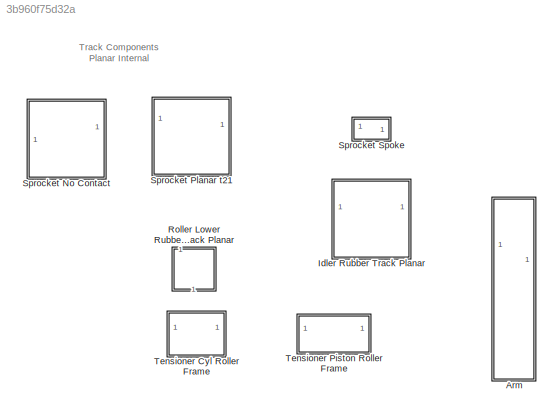
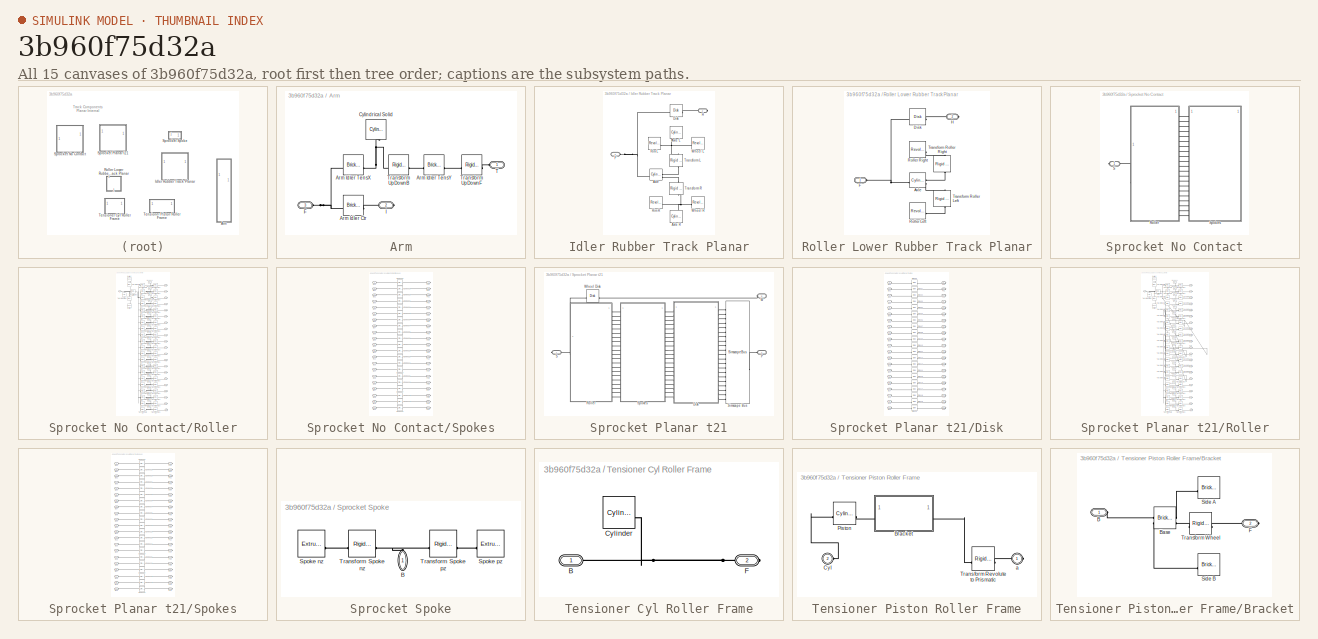
[diagram: thumbnail index - all 15 canvases of the model, root first then tree order]
MODEL slx_3b960f75d32a
KIND library
CONFIG SolverName = VariableStepAuto
BLOCK [SubSystem] Arm
BLOCK [Reference] Arm/Arm Idler Ctr  REF=sm_lib/Body Elements/Brick Solid
  SourceBlock = sm_lib/Body Elements/Brick Solid
  SourceType = Brick Solid
BLOCK [Reference] Arm/Arm Idler TensX  REF=sm_lib/Body Elements/Brick Solid
  SourceBlock = sm_lib/Body Elements/Brick Solid
  SourceType = Brick Solid
BLOCK [Reference] Arm/Arm Idler TensY  REF=sm_lib/Body Elements/Brick Solid
  SourceBlock = sm_lib/Body Elements/Brick Solid
  SourceType = Brick Solid
BLOCK [Reference] Arm/Cylindrical Solid  REF=sm_lib/Body Elements/Cylindrical Solid
  NameLocation = left
  SourceBlock = sm_lib/Body Elements/Cylindrical Solid
  SourceType = Cylindrical Solid
BLOCK [PMIOPort] Arm/F
  Port = 3
  Side = Left
BLOCK [PMIOPort] Arm/I
  Port = 2
  Side = Right
BLOCK [PMIOPort] Arm/T
  Side = Left
BLOCK [Reference] Arm/Transform UpDownB  REF=sm_lib/Frames and
Transforms/Rigid
Transform
  SourceBlock = sm_lib/Frames and\nTransforms/Rigid\nTransform
  SourceType = Rigid\nTransform
BLOCK [Reference] Arm/Transform UpDownF  REF=sm_lib/Frames and
Transforms/Rigid
Transform
  SourceBlock = sm_lib/Frames and\nTransforms/Rigid\nTransform
  SourceType = Rigid\nTransform
BLOCK [SubSystem] Idler Rubber Track Planar
BLOCK [Reference] Idler Rubber Track Planar/Axle  REF=sm_lib/Body Elements/Cylindrical Solid
  SourceBlock = sm_lib/Body Elements/Cylindrical Solid
  SourceType = Cylindrical Solid
BLOCK [Reference] Idler Rubber Track Planar/Axle L  REF=sm_lib/Body Elements/Cylindrical Solid
  NameLocation = right
  SourceBlock = sm_lib/Body Elements/Cylindrical Solid
  SourceType = Cylindrical Solid
BLOCK [Reference] Idler Rubber Track Planar/Axle R  REF=sm_lib/Body Elements/Cylindrical Solid
  NameLocation = right
  SourceBlock = sm_lib/Body Elements/Cylindrical Solid
  SourceType = Cylindrical Solid
BLOCK [Reference] Idler Rubber Track Planar/Disk  REF=sm_lib/Curves and Surfaces/Disk
  SourceBlock = sm_lib/Curves and Surfaces/Disk
  SourceType = Disk
BLOCK [PMIOPort] Idler Rubber Track Planar/F
  Side = Left
BLOCK [PMIOPort] Idler Rubber Track Planar/H
  Port = 2
  Side = Right
BLOCK [Reference] Idler Rubber Track Planar/Rim L  REF=sm_lib/Body Elements/Revolved Solid
  SourceBlock = sm_lib/Body Elements/Revolved Solid
  SourceType = Revolved Solid
BLOCK [Reference] Idler Rubber Track Planar/Rim R  REF=sm_lib/Body Elements/Revolved Solid
  SourceBlock = sm_lib/Body Elements/Revolved Solid
  SourceType = Revolved Solid
BLOCK [Reference] Idler Rubber Track Planar/Transform L  REF=sm_lib/Frames and
Transforms/Rigid
Transform
  NameLocation = right
  SourceBlock = sm_lib/Frames and\nTransforms/Rigid\nTransform
  SourceType = Rigid\nTransform
BLOCK [Reference] Idler Rubber Track Planar/Transform R  REF=sm_lib/Frames and
Transforms/Rigid
Transform
  NameLocation = right
  SourceBlock = sm_lib/Frames and\nTransforms/Rigid\nTransform
  SourceType = Rigid\nTransform
BLOCK [Reference] Idler Rubber Track Planar/Wheel L  REF=sm_lib/Body Elements/Revolved Solid
  SourceBlock = sm_lib/Body Elements/Revolved Solid
  SourceType = Revolved Solid
BLOCK [Reference] Idler Rubber Track Planar/Wheel R  REF=sm_lib/Body Elements/Revolved Solid
  SourceBlock = sm_lib/Body Elements/Revolved Solid
  SourceType = Revolved Solid
BLOCK [SubSystem] Roller Lower Rubber Track Planar
  NameLocation = right
BLOCK [Reference] Roller Lower Rubber Track Planar/Axle  REF=sm_lib/Body Elements/Cylindrical Solid
  SourceBlock = sm_lib/Body Elements/Cylindrical Solid
  SourceType = Cylindrical Solid
BLOCK [Reference] Roller Lower Rubber Track Planar/Disk  REF=sm_lib/Curves and Surfaces/Disk
  SourceBlock = sm_lib/Curves and Surfaces/Disk
  SourceType = Disk
BLOCK [PMIOPort] Roller Lower Rubber Track Planar/F
  Side = Left
BLOCK [PMIOPort] Roller Lower Rubber Track Planar/H
  Port = 2
  Side = Right
BLOCK [Reference] Roller Lower Rubber Track Planar/Roller Left  REF=sm_lib/Body Elements/Revolved Solid
  SourceBlock = sm_lib/Body Elements/Revolved Solid
  SourceType = Revolved Solid
BLOCK [Reference] Roller Lower Rubber Track Planar/Roller Right  REF=sm_lib/Body Elements/Revolved Solid
  NameLocation = top
  SourceBlock = sm_lib/Body Elements/Revolved Solid
  SourceType = Revolved Solid
BLOCK [Reference] Roller Lower Rubber Track Planar/Transform Roller Left  REF=sm_lib/Frames and
Transforms/Rigid
Transform
  NameLocation = right
  SourceBlock = sm_lib/Frames and\nTransforms/Rigid\nTransform
  SourceType = Rigid\nTransform
BLOCK [Reference] Roller Lower Rubber Track Planar/Transform Roller Right  REF=sm_lib/Frames and
Transforms/Rigid
Transform
  NameLocation = right
  SourceBlock = sm_lib/Frames and\nTransforms/Rigid\nTransform
  SourceType = Rigid\nTransform
BLOCK [SubSystem] Sprocket No Contact
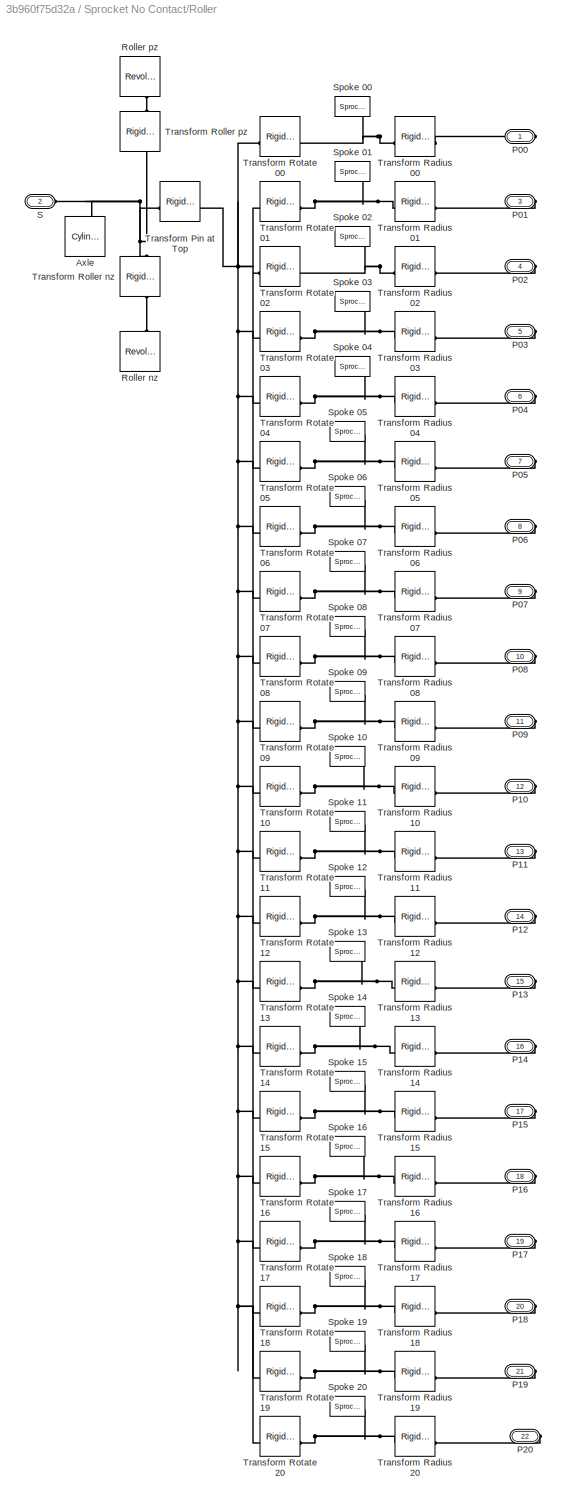
BLOCK [SubSystem] Sprocket No Contact/Roller
BLOCK [Reference] Sprocket No Contact/Roller/Axle  REF=sm_lib/Body Elements/Cylindrical Solid
  NameLocation = left
  SourceBlock = sm_lib/Body Elements/Cylindrical Solid
  SourceType = Cylindrical Solid
BLOCK [PMIOPort] Sprocket No Contact/Roller/P00
  Side = Right
BLOCK [PMIOPort] Sprocket No Contact/Roller/P01
  Port = 3
  Side = Right
BLOCK [PMIOPort] Sprocket No Contact/Roller/P02
  Port = 4
  Side = Right
BLOCK [PMIOPort] Sprocket No Contact/Roller/P03
  Port = 5
  Side = Right
BLOCK [PMIOPort] Sprocket No Contact/Roller/P04
  Port = 6
  Side = Right
BLOCK [PMIOPort] Sprocket No Contact/Roller/P05
  Port = 7
  Side = Right
BLOCK [PMIOPort] Sprocket No Contact/Roller/P06
  Port = 8
  Side = Right
BLOCK [PMIOPort] Sprocket No Contact/Roller/P07
  Port = 9
  Side = Right
BLOCK [PMIOPort] Sprocket No Contact/Roller/P08
  Port = 10
  Side = Right
BLOCK [PMIOPort] Sprocket No Contact/Roller/P09
  Port = 11
  Side = Right
BLOCK [PMIOPort] Sprocket No Contact/Roller/P10
  Port = 12
  Side = Right
BLOCK [PMIOPort] Sprocket No Contact/Roller/P11
  Port = 13
  Side = Right
BLOCK [PMIOPort] Sprocket No Contact/Roller/P12
  Port = 14
  Side = Right
BLOCK [PMIOPort] Sprocket No Contact/Roller/P13
  Port = 15
  Side = Right
BLOCK [PMIOPort] Sprocket No Contact/Roller/P14
  Port = 16
  Side = Right
BLOCK [PMIOPort] Sprocket No Contact/Roller/P15
  Port = 17
  Side = Right
BLOCK [PMIOPort] Sprocket No Contact/Roller/P16
  Port = 18
  Side = Right
BLOCK [PMIOPort] Sprocket No Contact/Roller/P17
  Port = 19
  Side = Right
BLOCK [PMIOPort] Sprocket No Contact/Roller/P18
  Port = 20
  Side = Right
BLOCK [PMIOPort] Sprocket No Contact/Roller/P19
  Port = 21
  Side = Right
BLOCK [PMIOPort] Sprocket No Contact/Roller/P20
  Port = 22
  Side = Right
BLOCK [Reference] Sprocket No Contact/Roller/Roller nz  REF=sm_lib/Body Elements/Revolved Solid
  NameLocation = right
  SourceBlock = sm_lib/Body Elements/Revolved Solid
  SourceType = Revolved Solid
BLOCK [Reference] Sprocket No Contact/Roller/Roller pz  REF=sm_lib/Body Elements/Revolved Solid
  NameLocation = right
  SourceBlock = sm_lib/Body Elements/Revolved Solid
  SourceType = Revolved Solid
BLOCK [PMIOPort] Sprocket No Contact/Roller/S
  Port = 2
  Side = Left
BLOCK [Reference] Sprocket No Contact/Roller/Spoke 00  REF=$bdroot/Sprocket
Spoke
  NameLocation = left
  SourceBlock = $bdroot/Sprocket\nSpoke
  SourceType = Spoke on Sprocket Wheel
BLOCK [Reference] Sprocket No Contact/Roller/Spoke 01  REF=$bdroot/Sprocket
Spoke
  NameLocation = left
  SourceBlock = $bdroot/Sprocket\nSpoke
  SourceType = Spoke on Sprocket Wheel
BLOCK [Reference] Sprocket No Contact/Roller/Spoke 02  REF=$bdroot/Sprocket
Spoke
  NameLocation = left
  SourceBlock = $bdroot/Sprocket\nSpoke
  SourceType = Spoke on Sprocket Wheel
BLOCK [Reference] Sprocket No Contact/Roller/Spoke 03  REF=$bdroot/Sprocket
Spoke
  NameLocation = left
  SourceBlock = $bdroot/Sprocket\nSpoke
  SourceType = Spoke on Sprocket Wheel
BLOCK [Reference] Sprocket No Contact/Roller/Spoke 04  REF=$bdroot/Sprocket
Spoke
  NameLocation = left
  SourceBlock = $bdroot/Sprocket\nSpoke
  SourceType = Spoke on Sprocket Wheel
BLOCK [Reference] Sprocket No Contact/Roller/Spoke 05  REF=$bdroot/Sprocket
Spoke
  NameLocation = left
  SourceBlock = $bdroot/Sprocket\nSpoke
  SourceType = Spoke on Sprocket Wheel
BLOCK [Reference] Sprocket No Contact/Roller/Spoke 06  REF=$bdroot/Sprocket
Spoke
  NameLocation = left
  SourceBlock = $bdroot/Sprocket\nSpoke
  SourceType = Spoke on Sprocket Wheel
BLOCK [Reference] Sprocket No Contact/Roller/Spoke 07  REF=$bdroot/Sprocket
Spoke
  NameLocation = left
  SourceBlock = $bdroot/Sprocket\nSpoke
  SourceType = Spoke on Sprocket Wheel
BLOCK [Reference] Sprocket No Contact/Roller/Spoke 08  REF=$bdroot/Sprocket
Spoke
  NameLocation = left
  SourceBlock = $bdroot/Sprocket\nSpoke
  SourceType = Spoke on Sprocket Wheel
BLOCK [Reference] Sprocket No Contact/Roller/Spoke 09  REF=$bdroot/Sprocket
Spoke
  NameLocation = left
  SourceBlock = $bdroot/Sprocket\nSpoke
  SourceType = Spoke on Sprocket Wheel
BLOCK [Reference] Sprocket No Contact/Roller/Spoke 10  REF=$bdroot/Sprocket
Spoke
  NameLocation = left
  SourceBlock = $bdroot/Sprocket\nSpoke
  SourceType = Spoke on Sprocket Wheel
BLOCK [Reference] Sprocket No Contact/Roller/Spoke 11  REF=$bdroot/Sprocket
Spoke
  NameLocation = left
  SourceBlock = $bdroot/Sprocket\nSpoke
  SourceType = Spoke on Sprocket Wheel
BLOCK [Reference] Sprocket No Contact/Roller/Spoke 12  REF=$bdroot/Sprocket
Spoke
  NameLocation = left
  SourceBlock = $bdroot/Sprocket\nSpoke
  SourceType = Spoke on Sprocket Wheel
BLOCK [Reference] Sprocket No Contact/Roller/Spoke 13  REF=$bdroot/Sprocket
Spoke
  NameLocation = left
  SourceBlock = $bdroot/Sprocket\nSpoke
  SourceType = Spoke on Sprocket Wheel
BLOCK [Reference] Sprocket No Contact/Roller/Spoke 14  REF=$bdroot/Sprocket
Spoke
  NameLocation = left
  SourceBlock = $bdroot/Sprocket\nSpoke
  SourceType = Spoke on Sprocket Wheel
BLOCK [Reference] Sprocket No Contact/Roller/Spoke 15  REF=$bdroot/Sprocket
Spoke
  NameLocation = left
  SourceBlock = $bdroot/Sprocket\nSpoke
  SourceType = Spoke on Sprocket Wheel
BLOCK [Reference] Sprocket No Contact/Roller/Spoke 16  REF=$bdroot/Sprocket
Spoke
  NameLocation = left
  SourceBlock = $bdroot/Sprocket\nSpoke
  SourceType = Spoke on Sprocket Wheel
BLOCK [Reference] Sprocket No Contact/Roller/Spoke 17  REF=$bdroot/Sprocket
Spoke
  NameLocation = left
  SourceBlock = $bdroot/Sprocket\nSpoke
  SourceType = Spoke on Sprocket Wheel
BLOCK [Reference] Sprocket No Contact/Roller/Spoke 18  REF=$bdroot/Sprocket
Spoke
  NameLocation = left
  SourceBlock = $bdroot/Sprocket\nSpoke
  SourceType = Spoke on Sprocket Wheel
BLOCK [Reference] Sprocket No Contact/Roller/Spoke 19  REF=$bdroot/Sprocket
Spoke
  NameLocation = left
  SourceBlock = $bdroot/Sprocket\nSpoke
  SourceType = Spoke on Sprocket Wheel
BLOCK [Reference] Sprocket No Contact/Roller/Spoke 20  REF=$bdroot/Sprocket
Spoke
  NameLocation = left
  SourceBlock = $bdroot/Sprocket\nSpoke
  SourceType = Spoke on Sprocket Wheel
BLOCK [Reference] Sprocket No Contact/Roller/Transform Pin at Top  REF=sm_lib/Frames and
Transforms/Rigid
Transform
  SourceBlock = sm_lib/Frames and\nTransforms/Rigid\nTransform
  SourceType = Rigid\nTransform
BLOCK [Reference] Sprocket No Contact/Roller/Transform Radius 00  REF=sm_lib/Frames and
Transforms/Rigid
Transform
  NameLocation = right
  SourceBlock = sm_lib/Frames and\nTransforms/Rigid\nTransform
  SourceType = Rigid\nTransform
BLOCK [Reference] Sprocket No Contact/Roller/Transform Radius 01  REF=sm_lib/Frames and
Transforms/Rigid
Transform
  NameLocation = right
  SourceBlock = sm_lib/Frames and\nTransforms/Rigid\nTransform
  SourceType = Rigid\nTransform
BLOCK [Reference] Sprocket No Contact/Roller/Transform Radius 02  REF=sm_lib/Frames and
Transforms/Rigid
Transform
  NameLocation = right
  SourceBlock = sm_lib/Frames and\nTransforms/Rigid\nTransform
  SourceType = Rigid\nTransform
BLOCK [Reference] Sprocket No Contact/Roller/Transform Radius 03  REF=sm_lib/Frames and
Transforms/Rigid
Transform
  NameLocation = right
  SourceBlock = sm_lib/Frames and\nTransforms/Rigid\nTransform
  SourceType = Rigid\nTransform
BLOCK [Reference] Sprocket No Contact/Roller/Transform Radius 04  REF=sm_lib/Frames and
Transforms/Rigid
Transform
  NameLocation = right
  SourceBlock = sm_lib/Frames and\nTransforms/Rigid\nTransform
  SourceType = Rigid\nTransform
BLOCK [Reference] Sprocket No Contact/Roller/Transform Radius 05  REF=sm_lib/Frames and
Transforms/Rigid
Transform
  NameLocation = right
  SourceBlock = sm_lib/Frames and\nTransforms/Rigid\nTransform
  SourceType = Rigid\nTransform
BLOCK [Reference] Sprocket No Contact/Roller/Transform Radius 06  REF=sm_lib/Frames and
Transforms/Rigid
Transform
  NameLocation = right
  SourceBlock = sm_lib/Frames and\nTransforms/Rigid\nTransform
  SourceType = Rigid\nTransform
BLOCK [Reference] Sprocket No Contact/Roller/Transform Radius 07  REF=sm_lib/Frames and
Transforms/Rigid
Transform
  NameLocation = right
  SourceBlock = sm_lib/Frames and\nTransforms/Rigid\nTransform
  SourceType = Rigid\nTransform
BLOCK [Reference] Sprocket No Contact/Roller/Transform Radius 08  REF=sm_lib/Frames and
Transforms/Rigid
Transform
  NameLocation = right
  SourceBlock = sm_lib/Frames and\nTransforms/Rigid\nTransform
  SourceType = Rigid\nTransform
BLOCK [Reference] Sprocket No Contact/Roller/Transform Radius 09  REF=sm_lib/Frames and
Transforms/Rigid
Transform
  NameLocation = right
  SourceBlock = sm_lib/Frames and\nTransforms/Rigid\nTransform
  SourceType = Rigid\nTransform
BLOCK [Reference] Sprocket No Contact/Roller/Transform Radius 10  REF=sm_lib/Frames and
Transforms/Rigid
Transform
  NameLocation = right
  SourceBlock = sm_lib/Frames and\nTransforms/Rigid\nTransform
  SourceType = Rigid\nTransform
BLOCK [Reference] Sprocket No Contact/Roller/Transform Radius 11  REF=sm_lib/Frames and
Transforms/Rigid
Transform
  NameLocation = right
  SourceBlock = sm_lib/Frames and\nTransforms/Rigid\nTransform
  SourceType = Rigid\nTransform
BLOCK [Reference] Sprocket No Contact/Roller/Transform Radius 12  REF=sm_lib/Frames and
Transforms/Rigid
Transform
  NameLocation = right
  SourceBlock = sm_lib/Frames and\nTransforms/Rigid\nTransform
  SourceType = Rigid\nTransform
BLOCK [Reference] Sprocket No Contact/Roller/Transform Radius 13  REF=sm_lib/Frames and
Transforms/Rigid
Transform
  NameLocation = right
  SourceBlock = sm_lib/Frames and\nTransforms/Rigid\nTransform
  SourceType = Rigid\nTransform
BLOCK [Reference] Sprocket No Contact/Roller/Transform Radius 14  REF=sm_lib/Frames and
Transforms/Rigid
Transform
  NameLocation = right
  SourceBlock = sm_lib/Frames and\nTransforms/Rigid\nTransform
  SourceType = Rigid\nTransform
BLOCK [Reference] Sprocket No Contact/Roller/Transform Radius 15  REF=sm_lib/Frames and
Transforms/Rigid
Transform
  NameLocation = right
  SourceBlock = sm_lib/Frames and\nTransforms/Rigid\nTransform
  SourceType = Rigid\nTransform
BLOCK [Reference] Sprocket No Contact/Roller/Transform Radius 16  REF=sm_lib/Frames and
Transforms/Rigid
Transform
  NameLocation = right
  SourceBlock = sm_lib/Frames and\nTransforms/Rigid\nTransform
  SourceType = Rigid\nTransform
BLOCK [Reference] Sprocket No Contact/Roller/Transform Radius 17  REF=sm_lib/Frames and
Transforms/Rigid
Transform
  NameLocation = right
  SourceBlock = sm_lib/Frames and\nTransforms/Rigid\nTransform
  SourceType = Rigid\nTransform
BLOCK [Reference] Sprocket No Contact/Roller/Transform Radius 18  REF=sm_lib/Frames and
Transforms/Rigid
Transform
  NameLocation = right
  SourceBlock = sm_lib/Frames and\nTransforms/Rigid\nTransform
  SourceType = Rigid\nTransform
BLOCK [Reference] Sprocket No Contact/Roller/Transform Radius 19  REF=sm_lib/Frames and
Transforms/Rigid
Transform
  NameLocation = right
  SourceBlock = sm_lib/Frames and\nTransforms/Rigid\nTransform
  SourceType = Rigid\nTransform
BLOCK [Reference] Sprocket No Contact/Roller/Transform Radius 20  REF=sm_lib/Frames and
Transforms/Rigid
Transform
  NameLocation = right
  SourceBlock = sm_lib/Frames and\nTransforms/Rigid\nTransform
  SourceType = Rigid\nTransform
BLOCK [Reference] Sprocket No Contact/Roller/Transform Roller nz  REF=sm_lib/Frames and
Transforms/Rigid
Transform
  NameLocation = right
  SourceBlock = sm_lib/Frames and\nTransforms/Rigid\nTransform
  SourceType = Rigid\nTransform
BLOCK [Reference] Sprocket No Contact/Roller/Transform Roller pz  REF=sm_lib/Frames and
Transforms/Rigid
Transform
  NameLocation = right
  SourceBlock = sm_lib/Frames and\nTransforms/Rigid\nTransform
  SourceType = Rigid\nTransform
BLOCK [Reference] Sprocket No Contact/Roller/Transform Rotate 00  REF=sm_lib/Frames and
Transforms/Rigid
Transform
  NameLocation = right
  SourceBlock = sm_lib/Frames and\nTransforms/Rigid\nTransform
  SourceType = Rigid\nTransform
BLOCK [Reference] Sprocket No Contact/Roller/Transform Rotate 01  REF=sm_lib/Frames and
Transforms/Rigid
Transform
  NameLocation = right
  SourceBlock = sm_lib/Frames and\nTransforms/Rigid\nTransform
  SourceType = Rigid\nTransform
BLOCK [Reference] Sprocket No Contact/Roller/Transform Rotate 02  REF=sm_lib/Frames and
Transforms/Rigid
Transform
  NameLocation = right
  SourceBlock = sm_lib/Frames and\nTransforms/Rigid\nTransform
  SourceType = Rigid\nTransform
BLOCK [Reference] Sprocket No Contact/Roller/Transform Rotate 03  REF=sm_lib/Frames and
Transforms/Rigid
Transform
  NameLocation = right
  SourceBlock = sm_lib/Frames and\nTransforms/Rigid\nTransform
  SourceType = Rigid\nTransform
BLOCK [Reference] Sprocket No Contact/Roller/Transform Rotate 04  REF=sm_lib/Frames and
Transforms/Rigid
Transform
  NameLocation = right
  SourceBlock = sm_lib/Frames and\nTransforms/Rigid\nTransform
  SourceType = Rigid\nTransform
BLOCK [Reference] Sprocket No Contact/Roller/Transform Rotate 05  REF=sm_lib/Frames and
Transforms/Rigid
Transform
  NameLocation = right
  SourceBlock = sm_lib/Frames and\nTransforms/Rigid\nTransform
  SourceType = Rigid\nTransform
BLOCK [Reference] Sprocket No Contact/Roller/Transform Rotate 06  REF=sm_lib/Frames and
Transforms/Rigid
Transform
  NameLocation = right
  SourceBlock = sm_lib/Frames and\nTransforms/Rigid\nTransform
  SourceType = Rigid\nTransform
BLOCK [Reference] Sprocket No Contact/Roller/Transform Rotate 07  REF=sm_lib/Frames and
Transforms/Rigid
Transform
  NameLocation = right
  SourceBlock = sm_lib/Frames and\nTransforms/Rigid\nTransform
  SourceType = Rigid\nTransform
BLOCK [Reference] Sprocket No Contact/Roller/Transform Rotate 08  REF=sm_lib/Frames and
Transforms/Rigid
Transform
  NameLocation = right
  SourceBlock = sm_lib/Frames and\nTransforms/Rigid\nTransform
  SourceType = Rigid\nTransform
BLOCK [Reference] Sprocket No Contact/Roller/Transform Rotate 09  REF=sm_lib/Frames and
Transforms/Rigid
Transform
  NameLocation = right
  SourceBlock = sm_lib/Frames and\nTransforms/Rigid\nTransform
  SourceType = Rigid\nTransform
BLOCK [Reference] Sprocket No Contact/Roller/Transform Rotate 10  REF=sm_lib/Frames and
Transforms/Rigid
Transform
  NameLocation = right
  SourceBlock = sm_lib/Frames and\nTransforms/Rigid\nTransform
  SourceType = Rigid\nTransform
BLOCK [Reference] Sprocket No Contact/Roller/Transform Rotate 11  REF=sm_lib/Frames and
Transforms/Rigid
Transform
  NameLocation = right
  SourceBlock = sm_lib/Frames and\nTransforms/Rigid\nTransform
  SourceType = Rigid\nTransform
BLOCK [Reference] Sprocket No Contact/Roller/Transform Rotate 12  REF=sm_lib/Frames and
Transforms/Rigid
Transform
  NameLocation = right
  SourceBlock = sm_lib/Frames and\nTransforms/Rigid\nTransform
  SourceType = Rigid\nTransform
BLOCK [Reference] Sprocket No Contact/Roller/Transform Rotate 13  REF=sm_lib/Frames and
Transforms/Rigid
Transform
  NameLocation = right
  SourceBlock = sm_lib/Frames and\nTransforms/Rigid\nTransform
  SourceType = Rigid\nTransform
BLOCK [Reference] Sprocket No Contact/Roller/Transform Rotate 14  REF=sm_lib/Frames and
Transforms/Rigid
Transform
  NameLocation = right
  SourceBlock = sm_lib/Frames and\nTransforms/Rigid\nTransform
  SourceType = Rigid\nTransform
BLOCK [Reference] Sprocket No Contact/Roller/Transform Rotate 15  REF=sm_lib/Frames and
Transforms/Rigid
Transform
  NameLocation = right
  SourceBlock = sm_lib/Frames and\nTransforms/Rigid\nTransform
  SourceType = Rigid\nTransform
BLOCK [Reference] Sprocket No Contact/Roller/Transform Rotate 16  REF=sm_lib/Frames and
Transforms/Rigid
Transform
  NameLocation = right
  SourceBlock = sm_lib/Frames and\nTransforms/Rigid\nTransform
  SourceType = Rigid\nTransform
BLOCK [Reference] Sprocket No Contact/Roller/Transform Rotate 17  REF=sm_lib/Frames and
Transforms/Rigid
Transform
  NameLocation = right
  SourceBlock = sm_lib/Frames and\nTransforms/Rigid\nTransform
  SourceType = Rigid\nTransform
BLOCK [Reference] Sprocket No Contact/Roller/Transform Rotate 18  REF=sm_lib/Frames and
Transforms/Rigid
Transform
  NameLocation = right
  SourceBlock = sm_lib/Frames and\nTransforms/Rigid\nTransform
  SourceType = Rigid\nTransform
BLOCK [Reference] Sprocket No Contact/Roller/Transform Rotate 19  REF=sm_lib/Frames and
Transforms/Rigid
Transform
  NameLocation = right
  SourceBlock = sm_lib/Frames and\nTransforms/Rigid\nTransform
  SourceType = Rigid\nTransform
BLOCK [Reference] Sprocket No Contact/Roller/Transform Rotate 20  REF=sm_lib/Frames and
Transforms/Rigid
Transform
  NameLocation = right
  SourceBlock = sm_lib/Frames and\nTransforms/Rigid\nTransform
  SourceType = Rigid\nTransform
BLOCK [PMIOPort] Sprocket No Contact/S
  Side = Right
BLOCK [SubSystem] Sprocket No Contact/Spokes
BLOCK [PMIOPort] Sprocket No Contact/Spokes/B00
  Side = Left
BLOCK [PMIOPort] Sprocket No Contact/Spokes/B01
  Port = 3
  Side = Left
BLOCK [PMIOPort] Sprocket No Contact/Spokes/B02
  Port = 5
  Side = Left
BLOCK [PMIOPort] Sprocket No Contact/Spokes/B03
  Port = 7
  Side = Left
BLOCK [PMIOPort] Sprocket No Contact/Spokes/B04
  Port = 9
  Side = Left
BLOCK [PMIOPort] Sprocket No Contact/Spokes/B05
  Port = 11
  Side = Left
BLOCK [PMIOPort] Sprocket No Contact/Spokes/B06
  Port = 13
  Side = Left
BLOCK [PMIOPort] Sprocket No Contact/Spokes/B07
  Port = 15
  Side = Left
BLOCK [PMIOPort] Sprocket No Contact/Spokes/B08
  Port = 17
  Side = Left
BLOCK [PMIOPort] Sprocket No Contact/Spokes/B09
  Port = 19
  Side = Left
BLOCK [PMIOPort] Sprocket No Contact/Spokes/B10
  Port = 21
  Side = Left
BLOCK [PMIOPort] Sprocket No Contact/Spokes/B11
  Port = 23
  Side = Left
BLOCK [PMIOPort] Sprocket No Contact/Spokes/B12
  Port = 25
  Side = Left
BLOCK [PMIOPort] Sprocket No Contact/Spokes/B13
  Port = 27
  Side = Left
BLOCK [PMIOPort] Sprocket No Contact/Spokes/B14
  Port = 29
  Side = Left
BLOCK [PMIOPort] Sprocket No Contact/Spokes/B15
  Port = 31
  Side = Left
BLOCK [PMIOPort] Sprocket No Contact/Spokes/B16
  Port = 33
  Side = Left
BLOCK [PMIOPort] Sprocket No Contact/Spokes/B17
  Port = 35
  Side = Left
BLOCK [PMIOPort] Sprocket No Contact/Spokes/B18
  Port = 37
  Side = Left
BLOCK [PMIOPort] Sprocket No Contact/Spokes/B19
  Port = 39
  Side = Left
BLOCK [PMIOPort] Sprocket No Contact/Spokes/B20
  Port = 41
  Side = Left
BLOCK [PMIOPort] Sprocket No Contact/Spokes/F00
  Port = 2
  Side = Right
BLOCK [PMIOPort] Sprocket No Contact/Spokes/F01
  Port = 4
  Side = Right
BLOCK [PMIOPort] Sprocket No Contact/Spokes/F02
  Port = 6
  Side = Right
BLOCK [PMIOPort] Sprocket No Contact/Spokes/F03
  Port = 8
  Side = Right
BLOCK [PMIOPort] Sprocket No Contact/Spokes/F04
  Port = 10
  Side = Right
BLOCK [PMIOPort] Sprocket No Contact/Spokes/F05
  Port = 12
  Side = Right
BLOCK [PMIOPort] Sprocket No Contact/Spokes/F06
  Port = 14
  Side = Right
BLOCK [PMIOPort] Sprocket No Contact/Spokes/F07
  Port = 16
  Side = Right
BLOCK [PMIOPort] Sprocket No Contact/Spokes/F08
  Port = 18
  Side = Right
BLOCK [PMIOPort] Sprocket No Contact/Spokes/F09
  Port = 20
  Side = Right
BLOCK [PMIOPort] Sprocket No Contact/Spokes/F10
  Port = 22
  Side = Right
BLOCK [PMIOPort] Sprocket No Contact/Spokes/F11
  Port = 24
  Side = Right
BLOCK [PMIOPort] Sprocket No Contact/Spokes/F12
  Port = 26
  Side = Right
BLOCK [PMIOPort] Sprocket No Contact/Spokes/F13
  Port = 28
  Side = Right
BLOCK [PMIOPort] Sprocket No Contact/Spokes/F14
  Port = 30
  Side = Right
BLOCK [PMIOPort] Sprocket No Contact/Spokes/F15
  Port = 32
  Side = Right
BLOCK [PMIOPort] Sprocket No Contact/Spokes/F16
  Port = 34
  Side = Right
BLOCK [PMIOPort] Sprocket No Contact/Spokes/F17
  Port = 36
  Side = Right
BLOCK [PMIOPort] Sprocket No Contact/Spokes/F18
  Port = 38
  Side = Right
BLOCK [PMIOPort] Sprocket No Contact/Spokes/F19
  Port = 40
  Side = Right
BLOCK [PMIOPort] Sprocket No Contact/Spokes/F20
  Port = 42
  Side = Right
BLOCK [Reference] Sprocket No Contact/Spokes/Spoke 00  REF=sm_lib/Body Elements/Cylindrical Solid
  NameLocation = right
  SourceBlock = sm_lib/Body Elements/Cylindrical Solid
  SourceType = Cylindrical Solid
BLOCK [Reference] Sprocket No Contact/Spokes/Spoke 01  REF=sm_lib/Body Elements/Cylindrical Solid
  NameLocation = right
  SourceBlock = sm_lib/Body Elements/Cylindrical Solid
  SourceType = Cylindrical Solid
BLOCK [Reference] Sprocket No Contact/Spokes/Spoke 02  REF=sm_lib/Body Elements/Cylindrical Solid
  NameLocation = right
  SourceBlock = sm_lib/Body Elements/Cylindrical Solid
  SourceType = Cylindrical Solid
BLOCK [Reference] Sprocket No Contact/Spokes/Spoke 03  REF=sm_lib/Body Elements/Cylindrical Solid
  NameLocation = right
  SourceBlock = sm_lib/Body Elements/Cylindrical Solid
  SourceType = Cylindrical Solid
BLOCK [Reference] Sprocket No Contact/Spokes/Spoke 04  REF=sm_lib/Body Elements/Cylindrical Solid
  NameLocation = right
  SourceBlock = sm_lib/Body Elements/Cylindrical Solid
  SourceType = Cylindrical Solid
BLOCK [Reference] Sprocket No Contact/Spokes/Spoke 05  REF=sm_lib/Body Elements/Cylindrical Solid
  NameLocation = right
  SourceBlock = sm_lib/Body Elements/Cylindrical Solid
  SourceType = Cylindrical Solid
BLOCK [Reference] Sprocket No Contact/Spokes/Spoke 06  REF=sm_lib/Body Elements/Cylindrical Solid
  NameLocation = right
  SourceBlock = sm_lib/Body Elements/Cylindrical Solid
  SourceType = Cylindrical Solid
BLOCK [Reference] Sprocket No Contact/Spokes/Spoke 07  REF=sm_lib/Body Elements/Cylindrical Solid
  NameLocation = right
  SourceBlock = sm_lib/Body Elements/Cylindrical Solid
  SourceType = Cylindrical Solid
BLOCK [Reference] Sprocket No Contact/Spokes/Spoke 08  REF=sm_lib/Body Elements/Cylindrical Solid
  NameLocation = right
  SourceBlock = sm_lib/Body Elements/Cylindrical Solid
  SourceType = Cylindrical Solid
BLOCK [Reference] Sprocket No Contact/Spokes/Spoke 09  REF=sm_lib/Body Elements/Cylindrical Solid
  NameLocation = right
  SourceBlock = sm_lib/Body Elements/Cylindrical Solid
  SourceType = Cylindrical Solid
BLOCK [Reference] Sprocket No Contact/Spokes/Spoke 10  REF=sm_lib/Body Elements/Cylindrical Solid
  NameLocation = right
  SourceBlock = sm_lib/Body Elements/Cylindrical Solid
  SourceType = Cylindrical Solid
BLOCK [Reference] Sprocket No Contact/Spokes/Spoke 11  REF=sm_lib/Body Elements/Cylindrical Solid
  NameLocation = right
  SourceBlock = sm_lib/Body Elements/Cylindrical Solid
  SourceType = Cylindrical Solid
BLOCK [Reference] Sprocket No Contact/Spokes/Spoke 12  REF=sm_lib/Body Elements/Cylindrical Solid
  NameLocation = right
  SourceBlock = sm_lib/Body Elements/Cylindrical Solid
  SourceType = Cylindrical Solid
BLOCK [Reference] Sprocket No Contact/Spokes/Spoke 13  REF=sm_lib/Body Elements/Cylindrical Solid
  NameLocation = right
  SourceBlock = sm_lib/Body Elements/Cylindrical Solid
  SourceType = Cylindrical Solid
BLOCK [Reference] Sprocket No Contact/Spokes/Spoke 14  REF=sm_lib/Body Elements/Cylindrical Solid
  NameLocation = right
  SourceBlock = sm_lib/Body Elements/Cylindrical Solid
  SourceType = Cylindrical Solid
BLOCK [Reference] Sprocket No Contact/Spokes/Spoke 15  REF=sm_lib/Body Elements/Cylindrical Solid
  NameLocation = right
  SourceBlock = sm_lib/Body Elements/Cylindrical Solid
  SourceType = Cylindrical Solid
BLOCK [Reference] Sprocket No Contact/Spokes/Spoke 16  REF=sm_lib/Body Elements/Cylindrical Solid
  NameLocation = right
  SourceBlock = sm_lib/Body Elements/Cylindrical Solid
  SourceType = Cylindrical Solid
BLOCK [Reference] Sprocket No Contact/Spokes/Spoke 17  REF=sm_lib/Body Elements/Cylindrical Solid
  NameLocation = right
  SourceBlock = sm_lib/Body Elements/Cylindrical Solid
  SourceType = Cylindrical Solid
BLOCK [Reference] Sprocket No Contact/Spokes/Spoke 18  REF=sm_lib/Body Elements/Cylindrical Solid
  NameLocation = right
  SourceBlock = sm_lib/Body Elements/Cylindrical Solid
  SourceType = Cylindrical Solid
BLOCK [Reference] Sprocket No Contact/Spokes/Spoke 19  REF=sm_lib/Body Elements/Cylindrical Solid
  NameLocation = right
  SourceBlock = sm_lib/Body Elements/Cylindrical Solid
  SourceType = Cylindrical Solid
BLOCK [Reference] Sprocket No Contact/Spokes/Spoke 20  REF=sm_lib/Body Elements/Cylindrical Solid
  NameLocation = right
  SourceBlock = sm_lib/Body Elements/Cylindrical Solid
  SourceType = Cylindrical Solid
BLOCK [SubSystem] Sprocket Planar t21
BLOCK [SubSystem] Sprocket Planar t21/Disk
BLOCK [PMIOPort] Sprocket Planar t21/Disk/B00
  Side = Left
BLOCK [PMIOPort] Sprocket Planar t21/Disk/B01
  Port = 3
  Side = Left
BLOCK [PMIOPort] Sprocket Planar t21/Disk/B02
  Port = 5
  Side = Left
BLOCK [PMIOPort] Sprocket Planar t21/Disk/B03
  Port = 7
  Side = Left
BLOCK [PMIOPort] Sprocket Planar t21/Disk/B04
  Port = 9
  Side = Left
BLOCK [PMIOPort] Sprocket Planar t21/Disk/B05
  Port = 11
  Side = Left
BLOCK [PMIOPort] Sprocket Planar t21/Disk/B06
  Port = 13
  Side = Left
BLOCK [PMIOPort] Sprocket Planar t21/Disk/B07
  Port = 15
  Side = Left
BLOCK [PMIOPort] Sprocket Planar t21/Disk/B08
  Port = 17
  Side = Left
BLOCK [PMIOPort] Sprocket Planar t21/Disk/B09
  Port = 19
  Side = Left
BLOCK [PMIOPort] Sprocket Planar t21/Disk/B10
  Port = 21
  Side = Left
BLOCK [PMIOPort] Sprocket Planar t21/Disk/B11
  Port = 23
  Side = Left
BLOCK [PMIOPort] Sprocket Planar t21/Disk/B12
  Port = 25
  Side = Left
BLOCK [PMIOPort] Sprocket Planar t21/Disk/B13
  Port = 27
  Side = Left
BLOCK [PMIOPort] Sprocket Planar t21/Disk/B14
  Port = 29
  Side = Left
BLOCK [PMIOPort] Sprocket Planar t21/Disk/B15
  Port = 31
  Side = Left
BLOCK [PMIOPort] Sprocket Planar t21/Disk/B16
  Port = 33
  Side = Left
BLOCK [PMIOPort] Sprocket Planar t21/Disk/B17
  Port = 35
  Side = Left
BLOCK [PMIOPort] Sprocket Planar t21/Disk/B18
  Port = 37
  Side = Left
BLOCK [PMIOPort] Sprocket Planar t21/Disk/B19
  Port = 39
  Side = Left
BLOCK [PMIOPort] Sprocket Planar t21/Disk/B20
  Port = 41
  Side = Left
BLOCK [Reference] Sprocket Planar t21/Disk/Disk 00  REF=sm_lib/Curves and Surfaces/Disk
  NameLocation = right
  SourceBlock = sm_lib/Curves and Surfaces/Disk
  SourceType = Disk
BLOCK [Reference] Sprocket Planar t21/Disk/Disk 01  REF=sm_lib/Curves and Surfaces/Disk
  NameLocation = right
  SourceBlock = sm_lib/Curves and Surfaces/Disk
  SourceType = Disk
BLOCK [Reference] Sprocket Planar t21/Disk/Disk 02  REF=sm_lib/Curves and Surfaces/Disk
  NameLocation = right
  SourceBlock = sm_lib/Curves and Surfaces/Disk
  SourceType = Disk
BLOCK [Reference] Sprocket Planar t21/Disk/Disk 03  REF=sm_lib/Curves and Surfaces/Disk
  NameLocation = right
  SourceBlock = sm_lib/Curves and Surfaces/Disk
  SourceType = Disk
BLOCK [Reference] Sprocket Planar t21/Disk/Disk 04  REF=sm_lib/Curves and Surfaces/Disk
  NameLocation = right
  SourceBlock = sm_lib/Curves and Surfaces/Disk
  SourceType = Disk
BLOCK [Reference] Sprocket Planar t21/Disk/Disk 05  REF=sm_lib/Curves and Surfaces/Disk
  NameLocation = right
  SourceBlock = sm_lib/Curves and Surfaces/Disk
  SourceType = Disk
BLOCK [Reference] Sprocket Planar t21/Disk/Disk 06  REF=sm_lib/Curves and Surfaces/Disk
  NameLocation = right
  SourceBlock = sm_lib/Curves and Surfaces/Disk
  SourceType = Disk
BLOCK [Reference] Sprocket Planar t21/Disk/Disk 07  REF=sm_lib/Curves and Surfaces/Disk
  NameLocation = right
  SourceBlock = sm_lib/Curves and Surfaces/Disk
  SourceType = Disk
BLOCK [Reference] Sprocket Planar t21/Disk/Disk 08  REF=sm_lib/Curves and Surfaces/Disk
  NameLocation = right
  SourceBlock = sm_lib/Curves and Surfaces/Disk
  SourceType = Disk
BLOCK [Reference] Sprocket Planar t21/Disk/Disk 09  REF=sm_lib/Curves and Surfaces/Disk
  NameLocation = right
  SourceBlock = sm_lib/Curves and Surfaces/Disk
  SourceType = Disk
BLOCK [Reference] Sprocket Planar t21/Disk/Disk 10  REF=sm_lib/Curves and Surfaces/Disk
  NameLocation = right
  SourceBlock = sm_lib/Curves and Surfaces/Disk
  SourceType = Disk
BLOCK [Reference] Sprocket Planar t21/Disk/Disk 11  REF=sm_lib/Curves and Surfaces/Disk
  NameLocation = right
  SourceBlock = sm_lib/Curves and Surfaces/Disk
  SourceType = Disk
BLOCK [Reference] Sprocket Planar t21/Disk/Disk 12  REF=sm_lib/Curves and Surfaces/Disk
  NameLocation = right
  SourceBlock = sm_lib/Curves and Surfaces/Disk
  SourceType = Disk
BLOCK [Reference] Sprocket Planar t21/Disk/Disk 13  REF=sm_lib/Curves and Surfaces/Disk
  NameLocation = right
  SourceBlock = sm_lib/Curves and Surfaces/Disk
  SourceType = Disk
BLOCK [Reference] Sprocket Planar t21/Disk/Disk 14  REF=sm_lib/Curves and Surfaces/Disk
  NameLocation = right
  SourceBlock = sm_lib/Curves and Surfaces/Disk
  SourceType = Disk
BLOCK [Reference] Sprocket Planar t21/Disk/Disk 15  REF=sm_lib/Curves and Surfaces/Disk
  NameLocation = right
  SourceBlock = sm_lib/Curves and Surfaces/Disk
  SourceType = Disk
BLOCK [Reference] Sprocket Planar t21/Disk/Disk 16  REF=sm_lib/Curves and Surfaces/Disk
  NameLocation = right
  SourceBlock = sm_lib/Curves and Surfaces/Disk
  SourceType = Disk
BLOCK [Reference] Sprocket Planar t21/Disk/Disk 17  REF=sm_lib/Curves and Surfaces/Disk
  NameLocation = right
  SourceBlock = sm_lib/Curves and Surfaces/Disk
  SourceType = Disk
BLOCK [Reference] Sprocket Planar t21/Disk/Disk 18  REF=sm_lib/Curves and Surfaces/Disk
  NameLocation = right
  SourceBlock = sm_lib/Curves and Surfaces/Disk
  SourceType = Disk
BLOCK [Reference] Sprocket Planar t21/Disk/Disk 19  REF=sm_lib/Curves and Surfaces/Disk
  NameLocation = right
  SourceBlock = sm_lib/Curves and Surfaces/Disk
  SourceType = Disk
BLOCK [Reference] Sprocket Planar t21/Disk/Disk 20  REF=sm_lib/Curves and Surfaces/Disk
  NameLocation = right
  SourceBlock = sm_lib/Curves and Surfaces/Disk
  SourceType = Disk
BLOCK [PMIOPort] Sprocket Planar t21/Disk/F00
  Port = 2
  Side = Right
BLOCK [PMIOPort] Sprocket Planar t21/Disk/F01
  Port = 4
  Side = Right
BLOCK [PMIOPort] Sprocket Planar t21/Disk/F02
  Port = 6
  Side = Right
BLOCK [PMIOPort] Sprocket Planar t21/Disk/F03
  Port = 8
  Side = Right
BLOCK [PMIOPort] Sprocket Planar t21/Disk/F04
  Port = 10
  Side = Right
BLOCK [PMIOPort] Sprocket Planar t21/Disk/F05
  Port = 12
  Side = Right
BLOCK [PMIOPort] Sprocket Planar t21/Disk/F06
  Port = 14
  Side = Right
BLOCK [PMIOPort] Sprocket Planar t21/Disk/F07
  Port = 16
  Side = Right
BLOCK [PMIOPort] Sprocket Planar t21/Disk/F08
  Port = 18
  Side = Right
BLOCK [PMIOPort] Sprocket Planar t21/Disk/F09
  Port = 20
  Side = Right
BLOCK [PMIOPort] Sprocket Planar t21/Disk/F10
  Port = 22
  Side = Right
BLOCK [PMIOPort] Sprocket Planar t21/Disk/F11
  Port = 24
  Side = Right
BLOCK [PMIOPort] Sprocket Planar t21/Disk/F12
  Port = 26
  Side = Right
BLOCK [PMIOPort] Sprocket Planar t21/Disk/F13
  Port = 28
  Side = Right
BLOCK [PMIOPort] Sprocket Planar t21/Disk/F14
  Port = 30
  Side = Right
BLOCK [PMIOPort] Sprocket Planar t21/Disk/F15
  Port = 32
  Side = Right
BLOCK [PMIOPort] Sprocket Planar t21/Disk/F16
  Port = 34
  Side = Right
BLOCK [PMIOPort] Sprocket Planar t21/Disk/F17
  Port = 36
  Side = Right
BLOCK [PMIOPort] Sprocket Planar t21/Disk/F18
  Port = 38
  Side = Right
BLOCK [PMIOPort] Sprocket Planar t21/Disk/F19
  Port = 40
  Side = Right
BLOCK [PMIOPort] Sprocket Planar t21/Disk/F20
  Port = 42
  Side = Right
BLOCK [PMIOPort] Sprocket Planar t21/P
  Port = 2
  Side = Left
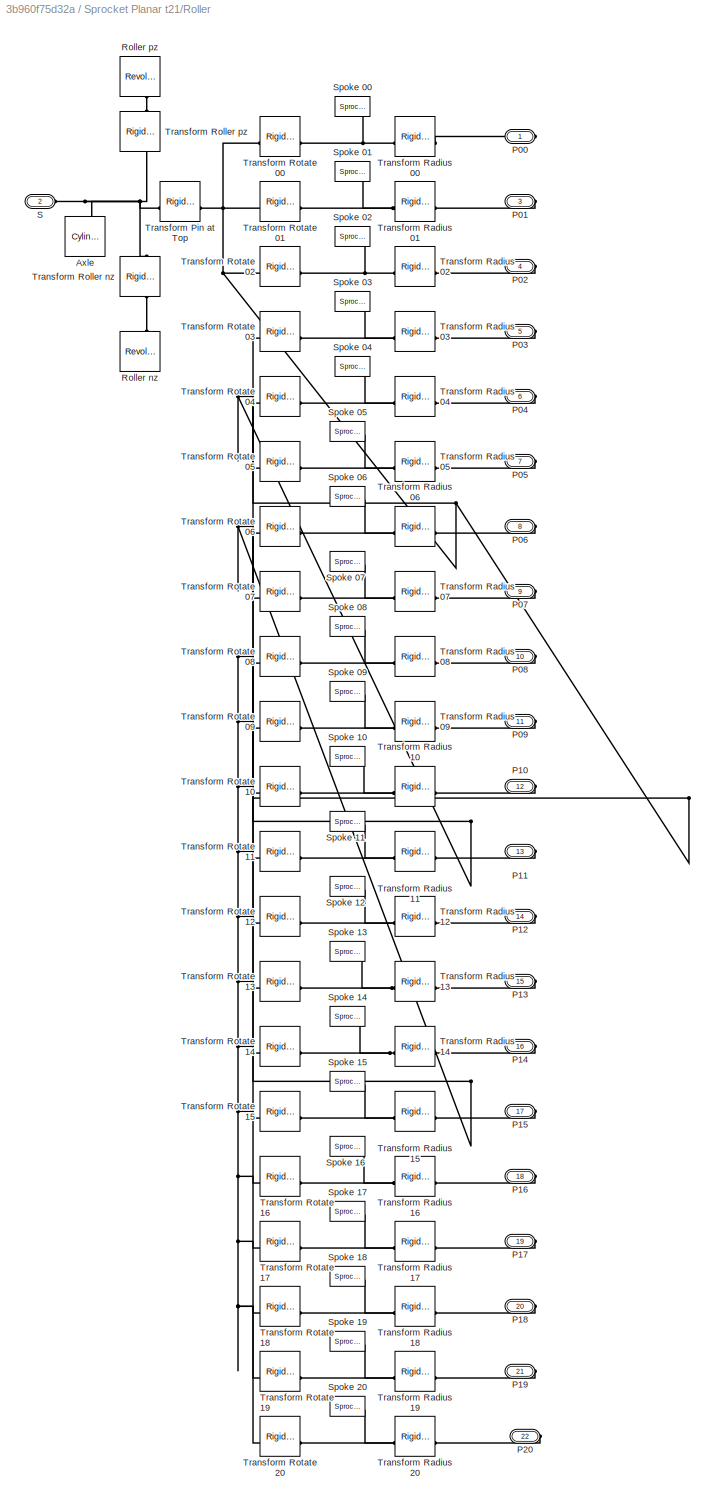
BLOCK [SubSystem] Sprocket Planar t21/Roller
BLOCK [Reference] Sprocket Planar t21/Roller/Axle  REF=sm_lib/Body Elements/Cylindrical Solid
  NameLocation = left
  SourceBlock = sm_lib/Body Elements/Cylindrical Solid
  SourceType = Cylindrical Solid
BLOCK [PMIOPort] Sprocket Planar t21/Roller/P00
  Side = Right
BLOCK [PMIOPort] Sprocket Planar t21/Roller/P01
  Port = 3
  Side = Right
BLOCK [PMIOPort] Sprocket Planar t21/Roller/P02
  Port = 4
  Side = Right
BLOCK [PMIOPort] Sprocket Planar t21/Roller/P03
  Port = 5
  Side = Right
BLOCK [PMIOPort] Sprocket Planar t21/Roller/P04
  Port = 6
  Side = Right
BLOCK [PMIOPort] Sprocket Planar t21/Roller/P05
  Port = 7
  Side = Right
BLOCK [PMIOPort] Sprocket Planar t21/Roller/P06
  Port = 8
  Side = Right
BLOCK [PMIOPort] Sprocket Planar t21/Roller/P07
  Port = 9
  Side = Right
BLOCK [PMIOPort] Sprocket Planar t21/Roller/P08
  Port = 10
  Side = Right
BLOCK [PMIOPort] Sprocket Planar t21/Roller/P09
  Port = 11
  Side = Right
BLOCK [PMIOPort] Sprocket Planar t21/Roller/P10
  Port = 12
  Side = Right
BLOCK [PMIOPort] Sprocket Planar t21/Roller/P11
  Port = 13
  Side = Right
BLOCK [PMIOPort] Sprocket Planar t21/Roller/P12
  Port = 14
  Side = Right
BLOCK [PMIOPort] Sprocket Planar t21/Roller/P13
  Port = 15
  Side = Right
BLOCK [PMIOPort] Sprocket Planar t21/Roller/P14
  Port = 16
  Side = Right
BLOCK [PMIOPort] Sprocket Planar t21/Roller/P15
  Port = 17
  Side = Right
BLOCK [PMIOPort] Sprocket Planar t21/Roller/P16
  Port = 18
  Side = Right
BLOCK [PMIOPort] Sprocket Planar t21/Roller/P17
  Port = 19
  Side = Right
BLOCK [PMIOPort] Sprocket Planar t21/Roller/P18
  Port = 20
  Side = Right
BLOCK [PMIOPort] Sprocket Planar t21/Roller/P19
  Port = 21
  Side = Right
BLOCK [PMIOPort] Sprocket Planar t21/Roller/P20
  Port = 22
  Side = Right
BLOCK [Reference] Sprocket Planar t21/Roller/Roller nz  REF=sm_lib/Body Elements/Revolved Solid
  NameLocation = right
  SourceBlock = sm_lib/Body Elements/Revolved Solid
  SourceType = Revolved Solid
BLOCK [Reference] Sprocket Planar t21/Roller/Roller pz  REF=sm_lib/Body Elements/Revolved Solid
  NameLocation = right
  SourceBlock = sm_lib/Body Elements/Revolved Solid
  SourceType = Revolved Solid
BLOCK [PMIOPort] Sprocket Planar t21/Roller/S
  Port = 2
  Side = Left
BLOCK [Reference] Sprocket Planar t21/Roller/Spoke 00  REF=$bdroot/Sprocket
Spoke
  NameLocation = left
  SourceBlock = $bdroot/Sprocket\nSpoke
  SourceType = Spoke on Sprocket Wheel
BLOCK [Reference] Sprocket Planar t21/Roller/Spoke 01  REF=$bdroot/Sprocket
Spoke
  NameLocation = left
  SourceBlock = $bdroot/Sprocket\nSpoke
  SourceType = Spoke on Sprocket Wheel
BLOCK [Reference] Sprocket Planar t21/Roller/Spoke 02  REF=$bdroot/Sprocket
Spoke
  NameLocation = left
  SourceBlock = $bdroot/Sprocket\nSpoke
  SourceType = Spoke on Sprocket Wheel
BLOCK [Reference] Sprocket Planar t21/Roller/Spoke 03  REF=$bdroot/Sprocket
Spoke
  NameLocation = left
  SourceBlock = $bdroot/Sprocket\nSpoke
  SourceType = Spoke on Sprocket Wheel
BLOCK [Reference] Sprocket Planar t21/Roller/Spoke 04  REF=$bdroot/Sprocket
Spoke
  NameLocation = left
  SourceBlock = $bdroot/Sprocket\nSpoke
  SourceType = Spoke on Sprocket Wheel
BLOCK [Reference] Sprocket Planar t21/Roller/Spoke 05  REF=$bdroot/Sprocket
Spoke
  NameLocation = left
  SourceBlock = $bdroot/Sprocket\nSpoke
  SourceType = Spoke on Sprocket Wheel
BLOCK [Reference] Sprocket Planar t21/Roller/Spoke 06  REF=$bdroot/Sprocket
Spoke
  NameLocation = left
  SourceBlock = $bdroot/Sprocket\nSpoke
  SourceType = Spoke on Sprocket Wheel
BLOCK [Reference] Sprocket Planar t21/Roller/Spoke 07  REF=$bdroot/Sprocket
Spoke
  NameLocation = left
  SourceBlock = $bdroot/Sprocket\nSpoke
  SourceType = Spoke on Sprocket Wheel
BLOCK [Reference] Sprocket Planar t21/Roller/Spoke 08  REF=$bdroot/Sprocket
Spoke
  NameLocation = left
  SourceBlock = $bdroot/Sprocket\nSpoke
  SourceType = Spoke on Sprocket Wheel
BLOCK [Reference] Sprocket Planar t21/Roller/Spoke 09  REF=$bdroot/Sprocket
Spoke
  NameLocation = left
  SourceBlock = $bdroot/Sprocket\nSpoke
  SourceType = Spoke on Sprocket Wheel
BLOCK [Reference] Sprocket Planar t21/Roller/Spoke 10  REF=$bdroot/Sprocket
Spoke
  NameLocation = left
  SourceBlock = $bdroot/Sprocket\nSpoke
  SourceType = Spoke on Sprocket Wheel
BLOCK [Reference] Sprocket Planar t21/Roller/Spoke 11  REF=$bdroot/Sprocket
Spoke
  NameLocation = left
  SourceBlock = $bdroot/Sprocket\nSpoke
  SourceType = Spoke on Sprocket Wheel
BLOCK [Reference] Sprocket Planar t21/Roller/Spoke 12  REF=$bdroot/Sprocket
Spoke
  NameLocation = left
  SourceBlock = $bdroot/Sprocket\nSpoke
  SourceType = Spoke on Sprocket Wheel
BLOCK [Reference] Sprocket Planar t21/Roller/Spoke 13  REF=$bdroot/Sprocket
Spoke
  NameLocation = left
  SourceBlock = $bdroot/Sprocket\nSpoke
  SourceType = Spoke on Sprocket Wheel
BLOCK [Reference] Sprocket Planar t21/Roller/Spoke 14  REF=$bdroot/Sprocket
Spoke
  NameLocation = left
  SourceBlock = $bdroot/Sprocket\nSpoke
  SourceType = Spoke on Sprocket Wheel
BLOCK [Reference] Sprocket Planar t21/Roller/Spoke 15  REF=$bdroot/Sprocket
Spoke
  NameLocation = left
  SourceBlock = $bdroot/Sprocket\nSpoke
  SourceType = Spoke on Sprocket Wheel
BLOCK [Reference] Sprocket Planar t21/Roller/Spoke 16  REF=$bdroot/Sprocket
Spoke
  NameLocation = left
  SourceBlock = $bdroot/Sprocket\nSpoke
  SourceType = Spoke on Sprocket Wheel
BLOCK [Reference] Sprocket Planar t21/Roller/Spoke 17  REF=$bdroot/Sprocket
Spoke
  NameLocation = left
  SourceBlock = $bdroot/Sprocket\nSpoke
  SourceType = Spoke on Sprocket Wheel
BLOCK [Reference] Sprocket Planar t21/Roller/Spoke 18  REF=$bdroot/Sprocket
Spoke
  NameLocation = left
  SourceBlock = $bdroot/Sprocket\nSpoke
  SourceType = Spoke on Sprocket Wheel
BLOCK [Reference] Sprocket Planar t21/Roller/Spoke 19  REF=$bdroot/Sprocket
Spoke
  NameLocation = left
  SourceBlock = $bdroot/Sprocket\nSpoke
  SourceType = Spoke on Sprocket Wheel
BLOCK [Reference] Sprocket Planar t21/Roller/Spoke 20  REF=$bdroot/Sprocket
Spoke
  NameLocation = left
  SourceBlock = $bdroot/Sprocket\nSpoke
  SourceType = Spoke on Sprocket Wheel
BLOCK [Reference] Sprocket Planar t21/Roller/Transform Pin at Top  REF=sm_lib/Frames and
Transforms/Rigid
Transform
  SourceBlock = sm_lib/Frames and\nTransforms/Rigid\nTransform
  SourceType = Rigid\nTransform
BLOCK [Reference] Sprocket Planar t21/Roller/Transform Radius 00  REF=sm_lib/Frames and
Transforms/Rigid
Transform
  NameLocation = right
  SourceBlock = sm_lib/Frames and\nTransforms/Rigid\nTransform
  SourceType = Rigid\nTransform
BLOCK [Reference] Sprocket Planar t21/Roller/Transform Radius 01  REF=sm_lib/Frames and
Transforms/Rigid
Transform
  NameLocation = right
  SourceBlock = sm_lib/Frames and\nTransforms/Rigid\nTransform
  SourceType = Rigid\nTransform
BLOCK [Reference] Sprocket Planar t21/Roller/Transform Radius 02  REF=sm_lib/Frames and
Transforms/Rigid
Transform
  NameLocation = right
  SourceBlock = sm_lib/Frames and\nTransforms/Rigid\nTransform
  SourceType = Rigid\nTransform
BLOCK [Reference] Sprocket Planar t21/Roller/Transform Radius 03  REF=sm_lib/Frames and
Transforms/Rigid
Transform
  NameLocation = right
  SourceBlock = sm_lib/Frames and\nTransforms/Rigid\nTransform
  SourceType = Rigid\nTransform
BLOCK [Reference] Sprocket Planar t21/Roller/Transform Radius 04  REF=sm_lib/Frames and
Transforms/Rigid
Transform
  NameLocation = right
  SourceBlock = sm_lib/Frames and\nTransforms/Rigid\nTransform
  SourceType = Rigid\nTransform
BLOCK [Reference] Sprocket Planar t21/Roller/Transform Radius 05  REF=sm_lib/Frames and
Transforms/Rigid
Transform
  NameLocation = right
  SourceBlock = sm_lib/Frames and\nTransforms/Rigid\nTransform
  SourceType = Rigid\nTransform
BLOCK [Reference] Sprocket Planar t21/Roller/Transform Radius 06  REF=sm_lib/Frames and
Transforms/Rigid
Transform
  NameLocation = right
  SourceBlock = sm_lib/Frames and\nTransforms/Rigid\nTransform
  SourceType = Rigid\nTransform
BLOCK [Reference] Sprocket Planar t21/Roller/Transform Radius 07  REF=sm_lib/Frames and
Transforms/Rigid
Transform
  NameLocation = right
  SourceBlock = sm_lib/Frames and\nTransforms/Rigid\nTransform
  SourceType = Rigid\nTransform
BLOCK [Reference] Sprocket Planar t21/Roller/Transform Radius 08  REF=sm_lib/Frames and
Transforms/Rigid
Transform
  NameLocation = right
  SourceBlock = sm_lib/Frames and\nTransforms/Rigid\nTransform
  SourceType = Rigid\nTransform
BLOCK [Reference] Sprocket Planar t21/Roller/Transform Radius 09  REF=sm_lib/Frames and
Transforms/Rigid
Transform
  NameLocation = right
  SourceBlock = sm_lib/Frames and\nTransforms/Rigid\nTransform
  SourceType = Rigid\nTransform
BLOCK [Reference] Sprocket Planar t21/Roller/Transform Radius 10  REF=sm_lib/Frames and
Transforms/Rigid
Transform
  NameLocation = right
  SourceBlock = sm_lib/Frames and\nTransforms/Rigid\nTransform
  SourceType = Rigid\nTransform
BLOCK [Reference] Sprocket Planar t21/Roller/Transform Radius 11  REF=sm_lib/Frames and
Transforms/Rigid
Transform
  NameLocation = right
  SourceBlock = sm_lib/Frames and\nTransforms/Rigid\nTransform
  SourceType = Rigid\nTransform
BLOCK [Reference] Sprocket Planar t21/Roller/Transform Radius 12  REF=sm_lib/Frames and
Transforms/Rigid
Transform
  NameLocation = right
  SourceBlock = sm_lib/Frames and\nTransforms/Rigid\nTransform
  SourceType = Rigid\nTransform
BLOCK [Reference] Sprocket Planar t21/Roller/Transform Radius 13  REF=sm_lib/Frames and
Transforms/Rigid
Transform
  NameLocation = right
  SourceBlock = sm_lib/Frames and\nTransforms/Rigid\nTransform
  SourceType = Rigid\nTransform
BLOCK [Reference] Sprocket Planar t21/Roller/Transform Radius 14  REF=sm_lib/Frames and
Transforms/Rigid
Transform
  NameLocation = right
  SourceBlock = sm_lib/Frames and\nTransforms/Rigid\nTransform
  SourceType = Rigid\nTransform
BLOCK [Reference] Sprocket Planar t21/Roller/Transform Radius 15  REF=sm_lib/Frames and
Transforms/Rigid
Transform
  NameLocation = right
  SourceBlock = sm_lib/Frames and\nTransforms/Rigid\nTransform
  SourceType = Rigid\nTransform
BLOCK [Reference] Sprocket Planar t21/Roller/Transform Radius 16  REF=sm_lib/Frames and
Transforms/Rigid
Transform
  NameLocation = right
  SourceBlock = sm_lib/Frames and\nTransforms/Rigid\nTransform
  SourceType = Rigid\nTransform
BLOCK [Reference] Sprocket Planar t21/Roller/Transform Radius 17  REF=sm_lib/Frames and
Transforms/Rigid
Transform
  NameLocation = right
  SourceBlock = sm_lib/Frames and\nTransforms/Rigid\nTransform
  SourceType = Rigid\nTransform
BLOCK [Reference] Sprocket Planar t21/Roller/Transform Radius 18  REF=sm_lib/Frames and
Transforms/Rigid
Transform
  NameLocation = right
  SourceBlock = sm_lib/Frames and\nTransforms/Rigid\nTransform
  SourceType = Rigid\nTransform
BLOCK [Reference] Sprocket Planar t21/Roller/Transform Radius 19  REF=sm_lib/Frames and
Transforms/Rigid
Transform
  NameLocation = right
  SourceBlock = sm_lib/Frames and\nTransforms/Rigid\nTransform
  SourceType = Rigid\nTransform
BLOCK [Reference] Sprocket Planar t21/Roller/Transform Radius 20  REF=sm_lib/Frames and
Transforms/Rigid
Transform
  NameLocation = right
  SourceBlock = sm_lib/Frames and\nTransforms/Rigid\nTransform
  SourceType = Rigid\nTransform
BLOCK [Reference] Sprocket Planar t21/Roller/Transform Roller nz  REF=sm_lib/Frames and
Transforms/Rigid
Transform
  NameLocation = right
  SourceBlock = sm_lib/Frames and\nTransforms/Rigid\nTransform
  SourceType = Rigid\nTransform
BLOCK [Reference] Sprocket Planar t21/Roller/Transform Roller pz  REF=sm_lib/Frames and
Transforms/Rigid
Transform
  NameLocation = right
  SourceBlock = sm_lib/Frames and\nTransforms/Rigid\nTransform
  SourceType = Rigid\nTransform
BLOCK [Reference] Sprocket Planar t21/Roller/Transform Rotate 00  REF=sm_lib/Frames and
Transforms/Rigid
Transform
  NameLocation = right
  SourceBlock = sm_lib/Frames and\nTransforms/Rigid\nTransform
  SourceType = Rigid\nTransform
BLOCK [Reference] Sprocket Planar t21/Roller/Transform Rotate 01  REF=sm_lib/Frames and
Transforms/Rigid
Transform
  NameLocation = right
  SourceBlock = sm_lib/Frames and\nTransforms/Rigid\nTransform
  SourceType = Rigid\nTransform
BLOCK [Reference] Sprocket Planar t21/Roller/Transform Rotate 02  REF=sm_lib/Frames and
Transforms/Rigid
Transform
  NameLocation = right
  SourceBlock = sm_lib/Frames and\nTransforms/Rigid\nTransform
  SourceType = Rigid\nTransform
BLOCK [Reference] Sprocket Planar t21/Roller/Transform Rotate 03  REF=sm_lib/Frames and
Transforms/Rigid
Transform
  NameLocation = right
  SourceBlock = sm_lib/Frames and\nTransforms/Rigid\nTransform
  SourceType = Rigid\nTransform
BLOCK [Reference] Sprocket Planar t21/Roller/Transform Rotate 04  REF=sm_lib/Frames and
Transforms/Rigid
Transform
  NameLocation = right
  SourceBlock = sm_lib/Frames and\nTransforms/Rigid\nTransform
  SourceType = Rigid\nTransform
BLOCK [Reference] Sprocket Planar t21/Roller/Transform Rotate 05  REF=sm_lib/Frames and
Transforms/Rigid
Transform
  NameLocation = right
  SourceBlock = sm_lib/Frames and\nTransforms/Rigid\nTransform
  SourceType = Rigid\nTransform
BLOCK [Reference] Sprocket Planar t21/Roller/Transform Rotate 06  REF=sm_lib/Frames and
Transforms/Rigid
Transform
  NameLocation = right
  SourceBlock = sm_lib/Frames and\nTransforms/Rigid\nTransform
  SourceType = Rigid\nTransform
BLOCK [Reference] Sprocket Planar t21/Roller/Transform Rotate 07  REF=sm_lib/Frames and
Transforms/Rigid
Transform
  NameLocation = right
  SourceBlock = sm_lib/Frames and\nTransforms/Rigid\nTransform
  SourceType = Rigid\nTransform
BLOCK [Reference] Sprocket Planar t21/Roller/Transform Rotate 08  REF=sm_lib/Frames and
Transforms/Rigid
Transform
  NameLocation = right
  SourceBlock = sm_lib/Frames and\nTransforms/Rigid\nTransform
  SourceType = Rigid\nTransform
BLOCK [Reference] Sprocket Planar t21/Roller/Transform Rotate 09  REF=sm_lib/Frames and
Transforms/Rigid
Transform
  NameLocation = right
  SourceBlock = sm_lib/Frames and\nTransforms/Rigid\nTransform
  SourceType = Rigid\nTransform
BLOCK [Reference] Sprocket Planar t21/Roller/Transform Rotate 10  REF=sm_lib/Frames and
Transforms/Rigid
Transform
  NameLocation = right
  SourceBlock = sm_lib/Frames and\nTransforms/Rigid\nTransform
  SourceType = Rigid\nTransform
BLOCK [Reference] Sprocket Planar t21/Roller/Transform Rotate 11  REF=sm_lib/Frames and
Transforms/Rigid
Transform
  NameLocation = right
  SourceBlock = sm_lib/Frames and\nTransforms/Rigid\nTransform
  SourceType = Rigid\nTransform
BLOCK [Reference] Sprocket Planar t21/Roller/Transform Rotate 12  REF=sm_lib/Frames and
Transforms/Rigid
Transform
  NameLocation = right
  SourceBlock = sm_lib/Frames and\nTransforms/Rigid\nTransform
  SourceType = Rigid\nTransform
BLOCK [Reference] Sprocket Planar t21/Roller/Transform Rotate 13  REF=sm_lib/Frames and
Transforms/Rigid
Transform
  NameLocation = right
  SourceBlock = sm_lib/Frames and\nTransforms/Rigid\nTransform
  SourceType = Rigid\nTransform
BLOCK [Reference] Sprocket Planar t21/Roller/Transform Rotate 14  REF=sm_lib/Frames and
Transforms/Rigid
Transform
  NameLocation = right
  SourceBlock = sm_lib/Frames and\nTransforms/Rigid\nTransform
  SourceType = Rigid\nTransform
BLOCK [Reference] Sprocket Planar t21/Roller/Transform Rotate 15  REF=sm_lib/Frames and
Transforms/Rigid
Transform
  NameLocation = right
  SourceBlock = sm_lib/Frames and\nTransforms/Rigid\nTransform
  SourceType = Rigid\nTransform
BLOCK [Reference] Sprocket Planar t21/Roller/Transform Rotate 16  REF=sm_lib/Frames and
Transforms/Rigid
Transform
  NameLocation = right
  SourceBlock = sm_lib/Frames and\nTransforms/Rigid\nTransform
  SourceType = Rigid\nTransform
BLOCK [Reference] Sprocket Planar t21/Roller/Transform Rotate 17  REF=sm_lib/Frames and
Transforms/Rigid
Transform
  NameLocation = right
  SourceBlock = sm_lib/Frames and\nTransforms/Rigid\nTransform
  SourceType = Rigid\nTransform
BLOCK [Reference] Sprocket Planar t21/Roller/Transform Rotate 18  REF=sm_lib/Frames and
Transforms/Rigid
Transform
  NameLocation = right
  SourceBlock = sm_lib/Frames and\nTransforms/Rigid\nTransform
  SourceType = Rigid\nTransform
BLOCK [Reference] Sprocket Planar t21/Roller/Transform Rotate 19  REF=sm_lib/Frames and
Transforms/Rigid
Transform
  NameLocation = right
  SourceBlock = sm_lib/Frames and\nTransforms/Rigid\nTransform
  SourceType = Rigid\nTransform
BLOCK [Reference] Sprocket Planar t21/Roller/Transform Rotate 20  REF=sm_lib/Frames and
Transforms/Rigid
Transform
  NameLocation = right
  SourceBlock = sm_lib/Frames and\nTransforms/Rigid\nTransform
  SourceType = Rigid\nTransform
BLOCK [PMIOPort] Sprocket Planar t21/S
  Side = Right
BLOCK [SimscapeBus] Sprocket Planar t21/Simscape Bus
  HierarchyStrings = P00;P01;P02;P03;P04;P05;P06;P07;P08;P09;P10;P11;P12;P13;P14;P15;P16;P17;P18;P19;P20
BLOCK [SubSystem] Sprocket Planar t21/Spokes
BLOCK [PMIOPort] Sprocket Planar t21/Spokes/B00
  Side = Left
BLOCK [PMIOPort] Sprocket Planar t21/Spokes/B01
  Port = 3
  Side = Left
BLOCK [PMIOPort] Sprocket Planar t21/Spokes/B02
  Port = 5
  Side = Left
BLOCK [PMIOPort] Sprocket Planar t21/Spokes/B03
  Port = 7
  Side = Left
BLOCK [PMIOPort] Sprocket Planar t21/Spokes/B04
  Port = 9
  Side = Left
BLOCK [PMIOPort] Sprocket Planar t21/Spokes/B05
  Port = 11
  Side = Left
BLOCK [PMIOPort] Sprocket Planar t21/Spokes/B06
  Port = 13
  Side = Left
BLOCK [PMIOPort] Sprocket Planar t21/Spokes/B07
  Port = 15
  Side = Left
BLOCK [PMIOPort] Sprocket Planar t21/Spokes/B08
  Port = 17
  Side = Left
BLOCK [PMIOPort] Sprocket Planar t21/Spokes/B09
  Port = 19
  Side = Left
BLOCK [PMIOPort] Sprocket Planar t21/Spokes/B10
  Port = 21
  Side = Left
BLOCK [PMIOPort] Sprocket Planar t21/Spokes/B11
  Port = 23
  Side = Left
BLOCK [PMIOPort] Sprocket Planar t21/Spokes/B12
  Port = 25
  Side = Left
BLOCK [PMIOPort] Sprocket Planar t21/Spokes/B13
  Port = 27
  Side = Left
BLOCK [PMIOPort] Sprocket Planar t21/Spokes/B14
  Port = 29
  Side = Left
BLOCK [PMIOPort] Sprocket Planar t21/Spokes/B15
  Port = 31
  Side = Left
BLOCK [PMIOPort] Sprocket Planar t21/Spokes/B16
  Port = 33
  Side = Left
BLOCK [PMIOPort] Sprocket Planar t21/Spokes/B17
  Port = 35
  Side = Left
BLOCK [PMIOPort] Sprocket Planar t21/Spokes/B18
  Port = 37
  Side = Left
BLOCK [PMIOPort] Sprocket Planar t21/Spokes/B19
  Port = 39
  Side = Left
BLOCK [PMIOPort] Sprocket Planar t21/Spokes/B20
  Port = 41
  Side = Left
BLOCK [PMIOPort] Sprocket Planar t21/Spokes/F00
  Port = 2
  Side = Right
BLOCK [PMIOPort] Sprocket Planar t21/Spokes/F01
  Port = 4
  Side = Right
BLOCK [PMIOPort] Sprocket Planar t21/Spokes/F02
  Port = 6
  Side = Right
BLOCK [PMIOPort] Sprocket Planar t21/Spokes/F03
  Port = 8
  Side = Right
BLOCK [PMIOPort] Sprocket Planar t21/Spokes/F04
  Port = 10
  Side = Right
BLOCK [PMIOPort] Sprocket Planar t21/Spokes/F05
  Port = 12
  Side = Right
BLOCK [PMIOPort] Sprocket Planar t21/Spokes/F06
  Port = 14
  Side = Right
BLOCK [PMIOPort] Sprocket Planar t21/Spokes/F07
  Port = 16
  Side = Right
BLOCK [PMIOPort] Sprocket Planar t21/Spokes/F08
  Port = 18
  Side = Right
BLOCK [PMIOPort] Sprocket Planar t21/Spokes/F09
  Port = 20
  Side = Right
BLOCK [PMIOPort] Sprocket Planar t21/Spokes/F10
  Port = 22
  Side = Right
BLOCK [PMIOPort] Sprocket Planar t21/Spokes/F11
  Port = 24
  Side = Right
BLOCK [PMIOPort] Sprocket Planar t21/Spokes/F12
  Port = 26
  Side = Right
BLOCK [PMIOPort] Sprocket Planar t21/Spokes/F13
  Port = 28
  Side = Right
BLOCK [PMIOPort] Sprocket Planar t21/Spokes/F14
  Port = 30
  Side = Right
BLOCK [PMIOPort] Sprocket Planar t21/Spokes/F15
  Port = 32
  Side = Right
BLOCK [PMIOPort] Sprocket Planar t21/Spokes/F16
  Port = 34
  Side = Right
BLOCK [PMIOPort] Sprocket Planar t21/Spokes/F17
  Port = 36
  Side = Right
BLOCK [PMIOPort] Sprocket Planar t21/Spokes/F18
  Port = 38
  Side = Right
BLOCK [PMIOPort] Sprocket Planar t21/Spokes/F19
  Port = 40
  Side = Right
BLOCK [PMIOPort] Sprocket Planar t21/Spokes/F20
  Port = 42
  Side = Right
BLOCK [Reference] Sprocket Planar t21/Spokes/Spoke 00  REF=sm_lib/Body Elements/Cylindrical Solid
  NameLocation = right
  SourceBlock = sm_lib/Body Elements/Cylindrical Solid
  SourceType = Cylindrical Solid
BLOCK [Reference] Sprocket Planar t21/Spokes/Spoke 01  REF=sm_lib/Body Elements/Cylindrical Solid
  NameLocation = right
  SourceBlock = sm_lib/Body Elements/Cylindrical Solid
  SourceType = Cylindrical Solid
BLOCK [Reference] Sprocket Planar t21/Spokes/Spoke 02  REF=sm_lib/Body Elements/Cylindrical Solid
  NameLocation = right
  SourceBlock = sm_lib/Body Elements/Cylindrical Solid
  SourceType = Cylindrical Solid
BLOCK [Reference] Sprocket Planar t21/Spokes/Spoke 03  REF=sm_lib/Body Elements/Cylindrical Solid
  NameLocation = right
  SourceBlock = sm_lib/Body Elements/Cylindrical Solid
  SourceType = Cylindrical Solid
BLOCK [Reference] Sprocket Planar t21/Spokes/Spoke 04  REF=sm_lib/Body Elements/Cylindrical Solid
  NameLocation = right
  SourceBlock = sm_lib/Body Elements/Cylindrical Solid
  SourceType = Cylindrical Solid
BLOCK [Reference] Sprocket Planar t21/Spokes/Spoke 05  REF=sm_lib/Body Elements/Cylindrical Solid
  NameLocation = right
  SourceBlock = sm_lib/Body Elements/Cylindrical Solid
  SourceType = Cylindrical Solid
BLOCK [Reference] Sprocket Planar t21/Spokes/Spoke 06  REF=sm_lib/Body Elements/Cylindrical Solid
  NameLocation = right
  SourceBlock = sm_lib/Body Elements/Cylindrical Solid
  SourceType = Cylindrical Solid
BLOCK [Reference] Sprocket Planar t21/Spokes/Spoke 07  REF=sm_lib/Body Elements/Cylindrical Solid
  NameLocation = right
  SourceBlock = sm_lib/Body Elements/Cylindrical Solid
  SourceType = Cylindrical Solid
BLOCK [Reference] Sprocket Planar t21/Spokes/Spoke 08  REF=sm_lib/Body Elements/Cylindrical Solid
  NameLocation = right
  SourceBlock = sm_lib/Body Elements/Cylindrical Solid
  SourceType = Cylindrical Solid
BLOCK [Reference] Sprocket Planar t21/Spokes/Spoke 09  REF=sm_lib/Body Elements/Cylindrical Solid
  NameLocation = right
  SourceBlock = sm_lib/Body Elements/Cylindrical Solid
  SourceType = Cylindrical Solid
BLOCK [Reference] Sprocket Planar t21/Spokes/Spoke 10  REF=sm_lib/Body Elements/Cylindrical Solid
  NameLocation = right
  SourceBlock = sm_lib/Body Elements/Cylindrical Solid
  SourceType = Cylindrical Solid
BLOCK [Reference] Sprocket Planar t21/Spokes/Spoke 11  REF=sm_lib/Body Elements/Cylindrical Solid
  NameLocation = right
  SourceBlock = sm_lib/Body Elements/Cylindrical Solid
  SourceType = Cylindrical Solid
BLOCK [Reference] Sprocket Planar t21/Spokes/Spoke 12  REF=sm_lib/Body Elements/Cylindrical Solid
  NameLocation = right
  SourceBlock = sm_lib/Body Elements/Cylindrical Solid
  SourceType = Cylindrical Solid
BLOCK [Reference] Sprocket Planar t21/Spokes/Spoke 13  REF=sm_lib/Body Elements/Cylindrical Solid
  NameLocation = right
  SourceBlock = sm_lib/Body Elements/Cylindrical Solid
  SourceType = Cylindrical Solid
BLOCK [Reference] Sprocket Planar t21/Spokes/Spoke 14  REF=sm_lib/Body Elements/Cylindrical Solid
  NameLocation = right
  SourceBlock = sm_lib/Body Elements/Cylindrical Solid
  SourceType = Cylindrical Solid
BLOCK [Reference] Sprocket Planar t21/Spokes/Spoke 15  REF=sm_lib/Body Elements/Cylindrical Solid
  NameLocation = right
  SourceBlock = sm_lib/Body Elements/Cylindrical Solid
  SourceType = Cylindrical Solid
BLOCK [Reference] Sprocket Planar t21/Spokes/Spoke 16  REF=sm_lib/Body Elements/Cylindrical Solid
  NameLocation = right
  SourceBlock = sm_lib/Body Elements/Cylindrical Solid
  SourceType = Cylindrical Solid
BLOCK [Reference] Sprocket Planar t21/Spokes/Spoke 17  REF=sm_lib/Body Elements/Cylindrical Solid
  NameLocation = right
  SourceBlock = sm_lib/Body Elements/Cylindrical Solid
  SourceType = Cylindrical Solid
BLOCK [Reference] Sprocket Planar t21/Spokes/Spoke 18  REF=sm_lib/Body Elements/Cylindrical Solid
  NameLocation = right
  SourceBlock = sm_lib/Body Elements/Cylindrical Solid
  SourceType = Cylindrical Solid
BLOCK [Reference] Sprocket Planar t21/Spokes/Spoke 19  REF=sm_lib/Body Elements/Cylindrical Solid
  NameLocation = right
  SourceBlock = sm_lib/Body Elements/Cylindrical Solid
  SourceType = Cylindrical Solid
BLOCK [Reference] Sprocket Planar t21/Spokes/Spoke 20  REF=sm_lib/Body Elements/Cylindrical Solid
  NameLocation = right
  SourceBlock = sm_lib/Body Elements/Cylindrical Solid
  SourceType = Cylindrical Solid
BLOCK [PMIOPort] Sprocket Planar t21/W
  NameLocation = top
  Port = 3
  Side = Left
BLOCK [Reference] Sprocket Planar t21/Wheel Disk  REF=sm_lib/Curves and Surfaces/Disk
  NameLocation = top
  SourceBlock = sm_lib/Curves and Surfaces/Disk
  SourceType = Disk
BLOCK [SubSystem] Sprocket Spoke
BLOCK [PMIOPort] Sprocket Spoke/B
  NameLocation = right
  Side = Left
BLOCK [Reference] Sprocket Spoke/Spoke nz  REF=sm_lib/Body Elements/Extruded Solid
  SourceBlock = sm_lib/Body Elements/Extruded Solid
  SourceType = Extruded Solid
BLOCK [Reference] Sprocket Spoke/Spoke pz  REF=sm_lib/Body Elements/Extruded Solid
  SourceBlock = sm_lib/Body Elements/Extruded Solid
  SourceType = Extruded Solid
BLOCK [Reference] Sprocket Spoke/Transform Spoke nz  REF=sm_lib/Frames and
Transforms/Rigid
Transform
  SourceBlock = sm_lib/Frames and\nTransforms/Rigid\nTransform
  SourceType = Rigid\nTransform
BLOCK [Reference] Sprocket Spoke/Transform Spoke pz  REF=sm_lib/Frames and
Transforms/Rigid
Transform
  SourceBlock = sm_lib/Frames and\nTransforms/Rigid\nTransform
  SourceType = Rigid\nTransform
BLOCK [SubSystem] Tensioner Cyl Roller Frame
BLOCK [PMIOPort] Tensioner Cyl Roller Frame/B
  Side = Left
BLOCK [Reference] Tensioner Cyl Roller Frame/Cylinder  REF=sm_lib/Body Elements/Cylindrical Solid
  SourceBlock = sm_lib/Body Elements/Cylindrical Solid
  SourceType = Cylindrical Solid
BLOCK [PMIOPort] Tensioner Cyl Roller Frame/F
  Port = 2
  Side = Right
BLOCK [SubSystem] Tensioner Piston Roller Frame
BLOCK [SubSystem] Tensioner Piston Roller Frame/Bracket
BLOCK [PMIOPort] Tensioner Piston Roller Frame/Bracket/B
  Side = Left
BLOCK [Reference] Tensioner Piston Roller Frame/Bracket/Base  REF=sm_lib/Body Elements/Brick Solid
  SourceBlock = sm_lib/Body Elements/Brick Solid
  SourceType = Brick Solid
BLOCK [PMIOPort] Tensioner Piston Roller Frame/Bracket/F
  Port = 2
  Side = Right
BLOCK [Reference] Tensioner Piston Roller Frame/Bracket/Side A  REF=sm_lib/Body Elements/Brick Solid
  SourceBlock = sm_lib/Body Elements/Brick Solid
  SourceType = Brick Solid
BLOCK [Reference] Tensioner Piston Roller Frame/Bracket/Side B  REF=sm_lib/Body Elements/Brick Solid
  SourceBlock = sm_lib/Body Elements/Brick Solid
  SourceType = Brick Solid
BLOCK [Reference] Tensioner Piston Roller Frame/Bracket/Transform Wheel  REF=sm_lib/Frames and
Transforms/Rigid
Transform
  SourceBlock = sm_lib/Frames and\nTransforms/Rigid\nTransform
  SourceType = Rigid\nTransform
BLOCK [PMIOPort] Tensioner Piston Roller Frame/Cyl
  Port = 2
  Side = Left
BLOCK [Reference] Tensioner Piston Roller Frame/Piston  REF=sm_lib/Body Elements/Cylindrical Solid
  SourceBlock = sm_lib/Body Elements/Cylindrical Solid
  SourceType = Cylindrical Solid
BLOCK [Reference] Tensioner Piston Roller Frame/Transform Revolute to Prismatic   REF=sm_lib/Frames and
Transforms/Rigid
Transform
  SourceBlock = sm_lib/Frames and\nTransforms/Rigid\nTransform
  SourceType = Rigid\nTransform
BLOCK [PMIOPort] Tensioner Piston Roller Frame/a
  Side = Right
ANNOTATION (root): Track Components Planar Internal
PNET net1: Arm/Arm Idler Ctr:LConn1 -- Arm/Arm Idler TensX:LConn1 -- Arm/F:RConn1
PLINE Arm/Arm Idler Ctr:RConn1 -- Arm/I:RConn1
PNET net2: Arm/Arm Idler TensX:RConn1 -- Arm/Cylindrical Solid:RConn1 -- Arm/Transform UpDownB:LConn1
PLINE Arm/Arm Idler TensY:LConn1 -- Arm/Transform UpDownB:RConn1
PLINE Arm/Arm Idler TensY:RConn1 -- Arm/Transform UpDownF:RConn1
PLINE Arm/T:RConn1 -- Arm/Transform UpDownF:LConn1
PNET net3: Idler Rubber Track Planar/Axle L:RConn1 -- Idler Rubber Track Planar/Rim L:RConn1 -- Idler Rubber Track Planar/Transform L:RConn1 -- Idler Rubber Track Planar/Wheel L:RConn1
PNET net4: Idler Rubber Track Planar/Axle R:RConn1 -- Idler Rubber Track Planar/Rim R:RConn1 -- Idler Rubber Track Planar/Transform R:RConn1 -- Idler Rubber Track Planar/Wheel R:RConn1
PLINE Idler Rubber Track Planar/Axle:LConn1 -- Idler Rubber Track Planar/Transform L:LConn1
PLINE Idler Rubber Track Planar/Axle:LConn2 -- Idler Rubber Track Planar/Transform R:LConn1
PNET net5: Idler Rubber Track Planar/Axle:RConn1 -- Idler Rubber Track Planar/Disk:LConn1 -- Idler Rubber Track Planar/F:RConn1
PLINE Idler Rubber Track Planar/Disk:RConn1 -- Idler Rubber Track Planar/H:RConn1
PLINE Roller Lower Rubber Track Planar/Axle:LConn1 -- Roller Lower Rubber Track Planar/Transform Roller Right:LConn1
PLINE Roller Lower Rubber Track Planar/Axle:LConn2 -- Roller Lower Rubber Track Planar/Transform Roller Left:RConn1
PNET net6: Roller Lower Rubber Track Planar/Axle:RConn1 -- Roller Lower Rubber Track Planar/Disk:LConn1 -- Roller Lower Rubber Track Planar/F:RConn1
PLINE Roller Lower Rubber Track Planar/Disk:RConn1 -- Roller Lower Rubber Track Planar/H:RConn1
PLINE Roller Lower Rubber Track Planar/Roller Left:RConn1 -- Roller Lower Rubber Track Planar/Transform Roller Left:LConn1
PLINE Roller Lower Rubber Track Planar/Roller Right:RConn1 -- Roller Lower Rubber Track Planar/Transform Roller Right:RConn1
PNET net7: Sprocket No Contact/Roller/Axle:RConn1 -- Sprocket No Contact/Roller/S:RConn1 -- Sprocket No Contact/Roller/Transform Pin at Top:LConn1 -- Sprocket No Contact/Roller/Transform Roller nz:LConn1 -- Sprocket No Contact/Roller/Transform Roller pz:LConn1
PLINE Sprocket No Contact/Roller/P00:RConn1 -- Sprocket No Contact/Roller/Transform Radius 00:RConn1
PLINE Sprocket No Contact/Roller/P01:RConn1 -- Sprocket No Contact/Roller/Transform Radius 01:RConn1
PLINE Sprocket No Contact/Roller/P02:RConn1 -- Sprocket No Contact/Roller/Transform Radius 02:RConn1
PLINE Sprocket No Contact/Roller/P03:RConn1 -- Sprocket No Contact/Roller/Transform Radius 03:RConn1
PLINE Sprocket No Contact/Roller/P04:RConn1 -- Sprocket No Contact/Roller/Transform Radius 04:RConn1
PLINE Sprocket No Contact/Roller/P05:RConn1 -- Sprocket No Contact/Roller/Transform Radius 05:RConn1
PLINE Sprocket No Contact/Roller/P06:RConn1 -- Sprocket No Contact/Roller/Transform Radius 06:RConn1
PLINE Sprocket No Contact/Roller/P07:RConn1 -- Sprocket No Contact/Roller/Transform Radius 07:RConn1
PLINE Sprocket No Contact/Roller/P08:RConn1 -- Sprocket No Contact/Roller/Transform Radius 08:RConn1
PLINE Sprocket No Contact/Roller/P09:RConn1 -- Sprocket No Contact/Roller/Transform Radius 09:RConn1
PLINE Sprocket No Contact/Roller/P10:RConn1 -- Sprocket No Contact/Roller/Transform Radius 10:RConn1
PLINE Sprocket No Contact/Roller/P11:RConn1 -- Sprocket No Contact/Roller/Transform Radius 11:RConn1
PLINE Sprocket No Contact/Roller/P12:RConn1 -- Sprocket No Contact/Roller/Transform Radius 12:RConn1
PLINE Sprocket No Contact/Roller/P13:RConn1 -- Sprocket No Contact/Roller/Transform Radius 13:RConn1
PLINE Sprocket No Contact/Roller/P14:RConn1 -- Sprocket No Contact/Roller/Transform Radius 14:RConn1
PLINE Sprocket No Contact/Roller/P15:RConn1 -- Sprocket No Contact/Roller/Transform Radius 15:RConn1
PLINE Sprocket No Contact/Roller/P16:RConn1 -- Sprocket No Contact/Roller/Transform Radius 16:RConn1
PLINE Sprocket No Contact/Roller/P17:RConn1 -- Sprocket No Contact/Roller/Transform Radius 17:RConn1
PLINE Sprocket No Contact/Roller/P18:RConn1 -- Sprocket No Contact/Roller/Transform Radius 18:RConn1
PLINE Sprocket No Contact/Roller/P19:RConn1 -- Sprocket No Contact/Roller/Transform Radius 19:RConn1
PLINE Sprocket No Contact/Roller/P20:RConn1 -- Sprocket No Contact/Roller/Transform Radius 20:RConn1
PLINE Sprocket No Contact/Roller/Roller nz:RConn1 -- Sprocket No Contact/Roller/Transform Roller nz:RConn1
PLINE Sprocket No Contact/Roller/Roller pz:RConn1 -- Sprocket No Contact/Roller/Transform Roller pz:RConn1
PNET net8: Sprocket No Contact/Roller/Spoke 00:LConn1 -- Sprocket No Contact/Roller/Transform Radius 00:LConn1 -- Sprocket No Contact/Roller/Transform Rotate 00:RConn1
PNET net9: Sprocket No Contact/Roller/Spoke 01:LConn1 -- Sprocket No Contact/Roller/Transform Radius 01:LConn1 -- Sprocket No Contact/Roller/Transform Rotate 01:RConn1
PNET net10: Sprocket No Contact/Roller/Spoke 02:LConn1 -- Sprocket No Contact/Roller/Transform Radius 02:LConn1 -- Sprocket No Contact/Roller/Transform Rotate 02:RConn1
PNET net11: Sprocket No Contact/Roller/Spoke 03:LConn1 -- Sprocket No Contact/Roller/Transform Radius 03:LConn1 -- Sprocket No Contact/Roller/Transform Rotate 03:RConn1
PNET net12: Sprocket No Contact/Roller/Spoke 04:LConn1 -- Sprocket No Contact/Roller/Transform Radius 04:LConn1 -- Sprocket No Contact/Roller/Transform Rotate 04:RConn1
PNET net13: Sprocket No Contact/Roller/Spoke 05:LConn1 -- Sprocket No Contact/Roller/Transform Radius 05:LConn1 -- Sprocket No Contact/Roller/Transform Rotate 05:RConn1
PNET net14: Sprocket No Contact/Roller/Spoke 06:LConn1 -- Sprocket No Contact/Roller/Transform Radius 06:LConn1 -- Sprocket No Contact/Roller/Transform Rotate 06:RConn1
PNET net15: Sprocket No Contact/Roller/Spoke 07:LConn1 -- Sprocket No Contact/Roller/Transform Radius 07:LConn1 -- Sprocket No Contact/Roller/Transform Rotate 07:RConn1
PNET net16: Sprocket No Contact/Roller/Spoke 08:LConn1 -- Sprocket No Contact/Roller/Transform Radius 08:LConn1 -- Sprocket No Contact/Roller/Transform Rotate 08:RConn1
PNET net17: Sprocket No Contact/Roller/Spoke 09:LConn1 -- Sprocket No Contact/Roller/Transform Radius 09:LConn1 -- Sprocket No Contact/Roller/Transform Rotate 09:RConn1
PNET net18: Sprocket No Contact/Roller/Spoke 10:LConn1 -- Sprocket No Contact/Roller/Transform Radius 10:LConn1 -- Sprocket No Contact/Roller/Transform Rotate 10:RConn1
PNET net19: Sprocket No Contact/Roller/Spoke 11:LConn1 -- Sprocket No Contact/Roller/Transform Radius 11:LConn1 -- Sprocket No Contact/Roller/Transform Rotate 11:RConn1
PNET net20: Sprocket No Contact/Roller/Spoke 12:LConn1 -- Sprocket No Contact/Roller/Transform Radius 12:LConn1 -- Sprocket No Contact/Roller/Transform Rotate 12:RConn1
PNET net21: Sprocket No Contact/Roller/Spoke 13:LConn1 -- Sprocket No Contact/Roller/Transform Radius 13:LConn1 -- Sprocket No Contact/Roller/Transform Rotate 13:RConn1
PNET net22: Sprocket No Contact/Roller/Spoke 14:LConn1 -- Sprocket No Contact/Roller/Transform Radius 14:LConn1 -- Sprocket No Contact/Roller/Transform Rotate 14:RConn1
PNET net23: Sprocket No Contact/Roller/Spoke 15:LConn1 -- Sprocket No Contact/Roller/Transform Radius 15:LConn1 -- Sprocket No Contact/Roller/Transform Rotate 15:RConn1
PNET net24: Sprocket No Contact/Roller/Spoke 16:LConn1 -- Sprocket No Contact/Roller/Transform Radius 16:LConn1 -- Sprocket No Contact/Roller/Transform Rotate 16:RConn1
PNET net25: Sprocket No Contact/Roller/Spoke 17:LConn1 -- Sprocket No Contact/Roller/Transform Radius 17:LConn1 -- Sprocket No Contact/Roller/Transform Rotate 17:RConn1
PNET net26: Sprocket No Contact/Roller/Spoke 18:LConn1 -- Sprocket No Contact/Roller/Transform Radius 18:LConn1 -- Sprocket No Contact/Roller/Transform Rotate 18:RConn1
PNET net27: Sprocket No Contact/Roller/Spoke 19:LConn1 -- Sprocket No Contact/Roller/Transform Radius 19:LConn1 -- Sprocket No Contact/Roller/Transform Rotate 19:RConn1
PNET net28: Sprocket No Contact/Roller/Spoke 20:LConn1 -- Sprocket No Contact/Roller/Transform Radius 20:LConn1 -- Sprocket No Contact/Roller/Transform Rotate 20:RConn1
PNET net29: Sprocket No Contact/Roller/Transform Pin at Top:RConn1 -- Sprocket No Contact/Roller/Transform Rotate 00:LConn1 -- Sprocket No Contact/Roller/Transform Rotate 01:LConn1 -- Sprocket No Contact/Roller/Transform Rotate 02:LConn1 -- Sprocket No Contact/Roller/Transform Rotate 03:LConn1 -- Sprocket No Contact/Roller/Transform Rotate 04:LConn1 -- Sprocket No Contact/Roller/Transform Rotate 05:LConn1 -- Sprocket No Contact/Roller/Transform Rotate 06:LConn1 -- Sprocket No Contact/Roller/Transform Rotate 07:LConn1 -- Sprocket No Contact/Roller/Transform Rotate 08:LConn1 -- Sprocket No Contact/Roller/Transform Rotate 09:LConn1 -- Sprocket No Contact/Roller/Transform Rotate 10:LConn1 -- Sprocket No Contact/Roller/Transform Rotate 11:LConn1 -- Sprocket No Contact/Roller/Transform Rotate 12:LConn1 -- Sprocket No Contact/Roller/Transform Rotate 13:LConn1 -- Sprocket No Contact/Roller/Transform Rotate 14:LConn1 -- Sprocket No Contact/Roller/Transform Rotate 15:LConn1 -- Sprocket No Contact/Roller/Transform Rotate 16:LConn1 -- Sprocket No Contact/Roller/Transform Rotate 17:LConn1 -- Sprocket No Contact/Roller/Transform Rotate 18:LConn1 -- Sprocket No Contact/Roller/Transform Rotate 19:LConn1 -- Sprocket No Contact/Roller/Transform Rotate 20:LConn1
PLINE Sprocket No Contact/Roller:LConn1 -- Sprocket No Contact/S:RConn1
PLINE Sprocket No Contact/Roller:RConn1 -- Sprocket No Contact/Spokes:LConn1
PLINE Sprocket No Contact/Roller:RConn10 -- Sprocket No Contact/Spokes:LConn10
PLINE Sprocket No Contact/Roller:RConn11 -- Sprocket No Contact/Spokes:LConn11
PLINE Sprocket No Contact/Roller:RConn12 -- Sprocket No Contact/Spokes:LConn12
PLINE Sprocket No Contact/Roller:RConn13 -- Sprocket No Contact/Spokes:LConn13
PLINE Sprocket No Contact/Roller:RConn14 -- Sprocket No Contact/Spokes:LConn14
PLINE Sprocket No Contact/Roller:RConn15 -- Sprocket No Contact/Spokes:LConn15
PLINE Sprocket No Contact/Roller:RConn16 -- Sprocket No Contact/Spokes:LConn16
PLINE Sprocket No Contact/Roller:RConn17 -- Sprocket No Contact/Spokes:LConn17
PLINE Sprocket No Contact/Roller:RConn18 -- Sprocket No Contact/Spokes:LConn18
PLINE Sprocket No Contact/Roller:RConn19 -- Sprocket No Contact/Spokes:LConn19
PLINE Sprocket No Contact/Roller:RConn2 -- Sprocket No Contact/Spokes:LConn2
PLINE Sprocket No Contact/Roller:RConn20 -- Sprocket No Contact/Spokes:LConn20
PLINE Sprocket No Contact/Roller:RConn21 -- Sprocket No Contact/Spokes:LConn21
PLINE Sprocket No Contact/Roller:RConn3 -- Sprocket No Contact/Spokes:LConn3
PLINE Sprocket No Contact/Roller:RConn4 -- Sprocket No Contact/Spokes:LConn4
PLINE Sprocket No Contact/Roller:RConn5 -- Sprocket No Contact/Spokes:LConn5
PLINE Sprocket No Contact/Roller:RConn6 -- Sprocket No Contact/Spokes:LConn6
PLINE Sprocket No Contact/Roller:RConn7 -- Sprocket No Contact/Spokes:LConn7
PLINE Sprocket No Contact/Roller:RConn8 -- Sprocket No Contact/Spokes:LConn8
PLINE Sprocket No Contact/Roller:RConn9 -- Sprocket No Contact/Spokes:LConn9
PLINE Sprocket No Contact/Spokes/B00:RConn1 -- Sprocket No Contact/Spokes/Spoke 00:LConn1
PLINE Sprocket No Contact/Spokes/B01:RConn1 -- Sprocket No Contact/Spokes/Spoke 01:LConn1
PLINE Sprocket No Contact/Spokes/B02:RConn1 -- Sprocket No Contact/Spokes/Spoke 02:LConn1
PLINE Sprocket No Contact/Spokes/B03:RConn1 -- Sprocket No Contact/Spokes/Spoke 03:LConn1
PLINE Sprocket No Contact/Spokes/B04:RConn1 -- Sprocket No Contact/Spokes/Spoke 04:LConn1
PLINE Sprocket No Contact/Spokes/B05:RConn1 -- Sprocket No Contact/Spokes/Spoke 05:LConn1
PLINE Sprocket No Contact/Spokes/B06:RConn1 -- Sprocket No Contact/Spokes/Spoke 06:LConn1
PLINE Sprocket No Contact/Spokes/B07:RConn1 -- Sprocket No Contact/Spokes/Spoke 07:LConn1
PLINE Sprocket No Contact/Spokes/B08:RConn1 -- Sprocket No Contact/Spokes/Spoke 08:LConn1
PLINE Sprocket No Contact/Spokes/B09:RConn1 -- Sprocket No Contact/Spokes/Spoke 09:LConn1
PLINE Sprocket No Contact/Spokes/B10:RConn1 -- Sprocket No Contact/Spokes/Spoke 10:LConn1
PLINE Sprocket No Contact/Spokes/B11:RConn1 -- Sprocket No Contact/Spokes/Spoke 11:LConn1
PLINE Sprocket No Contact/Spokes/B12:RConn1 -- Sprocket No Contact/Spokes/Spoke 12:LConn1
PLINE Sprocket No Contact/Spokes/B13:RConn1 -- Sprocket No Contact/Spokes/Spoke 13:LConn1
PLINE Sprocket No Contact/Spokes/B14:RConn1 -- Sprocket No Contact/Spokes/Spoke 14:LConn1
PLINE Sprocket No Contact/Spokes/B15:RConn1 -- Sprocket No Contact/Spokes/Spoke 15:LConn1
PLINE Sprocket No Contact/Spokes/B16:RConn1 -- Sprocket No Contact/Spokes/Spoke 16:LConn1
PLINE Sprocket No Contact/Spokes/B17:RConn1 -- Sprocket No Contact/Spokes/Spoke 17:LConn1
PLINE Sprocket No Contact/Spokes/B18:RConn1 -- Sprocket No Contact/Spokes/Spoke 18:LConn1
PLINE Sprocket No Contact/Spokes/B19:RConn1 -- Sprocket No Contact/Spokes/Spoke 19:LConn1
PLINE Sprocket No Contact/Spokes/B20:RConn1 -- Sprocket No Contact/Spokes/Spoke 20:LConn1
PLINE Sprocket No Contact/Spokes/F00:RConn1 -- Sprocket No Contact/Spokes/Spoke 00:RConn1
PLINE Sprocket No Contact/Spokes/F01:RConn1 -- Sprocket No Contact/Spokes/Spoke 01:RConn1
PLINE Sprocket No Contact/Spokes/F02:RConn1 -- Sprocket No Contact/Spokes/Spoke 02:RConn1
PLINE Sprocket No Contact/Spokes/F03:RConn1 -- Sprocket No Contact/Spokes/Spoke 03:RConn1
PLINE Sprocket No Contact/Spokes/F04:RConn1 -- Sprocket No Contact/Spokes/Spoke 04:RConn1
PLINE Sprocket No Contact/Spokes/F05:RConn1 -- Sprocket No Contact/Spokes/Spoke 05:RConn1
PLINE Sprocket No Contact/Spokes/F06:RConn1 -- Sprocket No Contact/Spokes/Spoke 06:RConn1
PLINE Sprocket No Contact/Spokes/F07:RConn1 -- Sprocket No Contact/Spokes/Spoke 07:RConn1
PLINE Sprocket No Contact/Spokes/F08:RConn1 -- Sprocket No Contact/Spokes/Spoke 08:RConn1
PLINE Sprocket No Contact/Spokes/F09:RConn1 -- Sprocket No Contact/Spokes/Spoke 09:RConn1
PLINE Sprocket No Contact/Spokes/F10:RConn1 -- Sprocket No Contact/Spokes/Spoke 10:RConn1
PLINE Sprocket No Contact/Spokes/F11:RConn1 -- Sprocket No Contact/Spokes/Spoke 11:RConn1
PLINE Sprocket No Contact/Spokes/F12:RConn1 -- Sprocket No Contact/Spokes/Spoke 12:RConn1
PLINE Sprocket No Contact/Spokes/F13:RConn1 -- Sprocket No Contact/Spokes/Spoke 13:RConn1
PLINE Sprocket No Contact/Spokes/F14:RConn1 -- Sprocket No Contact/Spokes/Spoke 14:RConn1
PLINE Sprocket No Contact/Spokes/F15:RConn1 -- Sprocket No Contact/Spokes/Spoke 15:RConn1
PLINE Sprocket No Contact/Spokes/F16:RConn1 -- Sprocket No Contact/Spokes/Spoke 16:RConn1
PLINE Sprocket No Contact/Spokes/F17:RConn1 -- Sprocket No Contact/Spokes/Spoke 17:RConn1
PLINE Sprocket No Contact/Spokes/F18:RConn1 -- Sprocket No Contact/Spokes/Spoke 18:RConn1
PLINE Sprocket No Contact/Spokes/F19:RConn1 -- Sprocket No Contact/Spokes/Spoke 19:RConn1
PLINE Sprocket No Contact/Spokes/F20:RConn1 -- Sprocket No Contact/Spokes/Spoke 20:RConn1
PLINE Sprocket Planar t21/Disk/B00:RConn1 -- Sprocket Planar t21/Disk/Disk 00:LConn1
PLINE Sprocket Planar t21/Disk/B01:RConn1 -- Sprocket Planar t21/Disk/Disk 01:LConn1
PLINE Sprocket Planar t21/Disk/B02:RConn1 -- Sprocket Planar t21/Disk/Disk 02:LConn1
PLINE Sprocket Planar t21/Disk/B03:RConn1 -- Sprocket Planar t21/Disk/Disk 03:LConn1
PLINE Sprocket Planar t21/Disk/B04:RConn1 -- Sprocket Planar t21/Disk/Disk 04:LConn1
PLINE Sprocket Planar t21/Disk/B05:RConn1 -- Sprocket Planar t21/Disk/Disk 05:LConn1
PLINE Sprocket Planar t21/Disk/B06:RConn1 -- Sprocket Planar t21/Disk/Disk 06:LConn1
PLINE Sprocket Planar t21/Disk/B07:RConn1 -- Sprocket Planar t21/Disk/Disk 07:LConn1
PLINE Sprocket Planar t21/Disk/B08:RConn1 -- Sprocket Planar t21/Disk/Disk 08:LConn1
PLINE Sprocket Planar t21/Disk/B09:RConn1 -- Sprocket Planar t21/Disk/Disk 09:LConn1
PLINE Sprocket Planar t21/Disk/B10:RConn1 -- Sprocket Planar t21/Disk/Disk 10:LConn1
PLINE Sprocket Planar t21/Disk/B11:RConn1 -- Sprocket Planar t21/Disk/Disk 11:LConn1
PLINE Sprocket Planar t21/Disk/B12:RConn1 -- Sprocket Planar t21/Disk/Disk 12:LConn1
PLINE Sprocket Planar t21/Disk/B13:RConn1 -- Sprocket Planar t21/Disk/Disk 13:LConn1
PLINE Sprocket Planar t21/Disk/B14:RConn1 -- Sprocket Planar t21/Disk/Disk 14:LConn1
PLINE Sprocket Planar t21/Disk/B15:RConn1 -- Sprocket Planar t21/Disk/Disk 15:LConn1
PLINE Sprocket Planar t21/Disk/B16:RConn1 -- Sprocket Planar t21/Disk/Disk 16:LConn1
PLINE Sprocket Planar t21/Disk/B17:RConn1 -- Sprocket Planar t21/Disk/Disk 17:LConn1
PLINE Sprocket Planar t21/Disk/B18:RConn1 -- Sprocket Planar t21/Disk/Disk 18:LConn1
PLINE Sprocket Planar t21/Disk/B19:RConn1 -- Sprocket Planar t21/Disk/Disk 19:LConn1
PLINE Sprocket Planar t21/Disk/B20:RConn1 -- Sprocket Planar t21/Disk/Disk 20:LConn1
PLINE Sprocket Planar t21/Disk/Disk 00:RConn1 -- Sprocket Planar t21/Disk/F00:RConn1
PLINE Sprocket Planar t21/Disk/Disk 01:RConn1 -- Sprocket Planar t21/Disk/F01:RConn1
PLINE Sprocket Planar t21/Disk/Disk 02:RConn1 -- Sprocket Planar t21/Disk/F02:RConn1
PLINE Sprocket Planar t21/Disk/Disk 03:RConn1 -- Sprocket Planar t21/Disk/F03:RConn1
PLINE Sprocket Planar t21/Disk/Disk 04:RConn1 -- Sprocket Planar t21/Disk/F04:RConn1
PLINE Sprocket Planar t21/Disk/Disk 05:RConn1 -- Sprocket Planar t21/Disk/F05:RConn1
PLINE Sprocket Planar t21/Disk/Disk 06:RConn1 -- Sprocket Planar t21/Disk/F06:RConn1
PLINE Sprocket Planar t21/Disk/Disk 07:RConn1 -- Sprocket Planar t21/Disk/F07:RConn1
PLINE Sprocket Planar t21/Disk/Disk 08:RConn1 -- Sprocket Planar t21/Disk/F08:RConn1
PLINE Sprocket Planar t21/Disk/Disk 09:RConn1 -- Sprocket Planar t21/Disk/F09:RConn1
PLINE Sprocket Planar t21/Disk/Disk 10:RConn1 -- Sprocket Planar t21/Disk/F10:RConn1
PLINE Sprocket Planar t21/Disk/Disk 11:RConn1 -- Sprocket Planar t21/Disk/F11:RConn1
PLINE Sprocket Planar t21/Disk/Disk 12:RConn1 -- Sprocket Planar t21/Disk/F12:RConn1
PLINE Sprocket Planar t21/Disk/Disk 13:RConn1 -- Sprocket Planar t21/Disk/F13:RConn1
PLINE Sprocket Planar t21/Disk/Disk 14:RConn1 -- Sprocket Planar t21/Disk/F14:RConn1
PLINE Sprocket Planar t21/Disk/Disk 15:RConn1 -- Sprocket Planar t21/Disk/F15:RConn1
PLINE Sprocket Planar t21/Disk/Disk 16:RConn1 -- Sprocket Planar t21/Disk/F16:RConn1
PLINE Sprocket Planar t21/Disk/Disk 17:RConn1 -- Sprocket Planar t21/Disk/F17:RConn1
PLINE Sprocket Planar t21/Disk/Disk 18:RConn1 -- Sprocket Planar t21/Disk/F18:RConn1
PLINE Sprocket Planar t21/Disk/Disk 19:RConn1 -- Sprocket Planar t21/Disk/F19:RConn1
PLINE Sprocket Planar t21/Disk/Disk 20:RConn1 -- Sprocket Planar t21/Disk/F20:RConn1
PLINE Sprocket Planar t21/Disk:LConn1 -- Sprocket Planar t21/Spokes:RConn1
PLINE Sprocket Planar t21/Disk:LConn10 -- Sprocket Planar t21/Spokes:RConn10
PLINE Sprocket Planar t21/Disk:LConn11 -- Sprocket Planar t21/Spokes:RConn11
PLINE Sprocket Planar t21/Disk:LConn12 -- Sprocket Planar t21/Spokes:RConn12
PLINE Sprocket Planar t21/Disk:LConn13 -- Sprocket Planar t21/Spokes:RConn13
PLINE Sprocket Planar t21/Disk:LConn14 -- Sprocket Planar t21/Spokes:RConn14
PLINE Sprocket Planar t21/Disk:LConn15 -- Sprocket Planar t21/Spokes:RConn15
PLINE Sprocket Planar t21/Disk:LConn16 -- Sprocket Planar t21/Spokes:RConn16
PLINE Sprocket Planar t21/Disk:LConn17 -- Sprocket Planar t21/Spokes:RConn17
PLINE Sprocket Planar t21/Disk:LConn18 -- Sprocket Planar t21/Spokes:RConn18
PLINE Sprocket Planar t21/Disk:LConn19 -- Sprocket Planar t21/Spokes:RConn19
PLINE Sprocket Planar t21/Disk:LConn2 -- Sprocket Planar t21/Spokes:RConn2
PLINE Sprocket Planar t21/Disk:LConn20 -- Sprocket Planar t21/Spokes:RConn20
PLINE Sprocket Planar t21/Disk:LConn21 -- Sprocket Planar t21/Spokes:RConn21
PLINE Sprocket Planar t21/Disk:LConn3 -- Sprocket Planar t21/Spokes:RConn3
PLINE Sprocket Planar t21/Disk:LConn4 -- Sprocket Planar t21/Spokes:RConn4
PLINE Sprocket Planar t21/Disk:LConn5 -- Sprocket Planar t21/Spokes:RConn5
PLINE Sprocket Planar t21/Disk:LConn6 -- Sprocket Planar t21/Spokes:RConn6
PLINE Sprocket Planar t21/Disk:LConn7 -- Sprocket Planar t21/Spokes:RConn7
PLINE Sprocket Planar t21/Disk:LConn8 -- Sprocket Planar t21/Spokes:RConn8
PLINE Sprocket Planar t21/Disk:LConn9 -- Sprocket Planar t21/Spokes:RConn9
PLINE Sprocket Planar t21/Disk:RConn1 -- Sprocket Planar t21/Simscape Bus:LConn1
PLINE Sprocket Planar t21/Disk:RConn10 -- Sprocket Planar t21/Simscape Bus:LConn10
PLINE Sprocket Planar t21/Disk:RConn11 -- Sprocket Planar t21/Simscape Bus:LConn11
PLINE Sprocket Planar t21/Disk:RConn12 -- Sprocket Planar t21/Simscape Bus:LConn12
PLINE Sprocket Planar t21/Disk:RConn13 -- Sprocket Planar t21/Simscape Bus:LConn13
PLINE Sprocket Planar t21/Disk:RConn14 -- Sprocket Planar t21/Simscape Bus:LConn14
PLINE Sprocket Planar t21/Disk:RConn15 -- Sprocket Planar t21/Simscape Bus:LConn15
PLINE Sprocket Planar t21/Disk:RConn16 -- Sprocket Planar t21/Simscape Bus:LConn16
PLINE Sprocket Planar t21/Disk:RConn17 -- Sprocket Planar t21/Simscape Bus:LConn17
PLINE Sprocket Planar t21/Disk:RConn18 -- Sprocket Planar t21/Simscape Bus:LConn18
PLINE Sprocket Planar t21/Disk:RConn19 -- Sprocket Planar t21/Simscape Bus:LConn19
PLINE Sprocket Planar t21/Disk:RConn2 -- Sprocket Planar t21/Simscape Bus:LConn2
PLINE Sprocket Planar t21/Disk:RConn20 -- Sprocket Planar t21/Simscape Bus:LConn20
PLINE Sprocket Planar t21/Disk:RConn21 -- Sprocket Planar t21/Simscape Bus:LConn21
PLINE Sprocket Planar t21/Disk:RConn3 -- Sprocket Planar t21/Simscape Bus:LConn3
PLINE Sprocket Planar t21/Disk:RConn4 -- Sprocket Planar t21/Simscape Bus:LConn4
PLINE Sprocket Planar t21/Disk:RConn5 -- Sprocket Planar t21/Simscape Bus:LConn5
PLINE Sprocket Planar t21/Disk:RConn6 -- Sprocket Planar t21/Simscape Bus:LConn6
PLINE Sprocket Planar t21/Disk:RConn7 -- Sprocket Planar t21/Simscape Bus:LConn7
PLINE Sprocket Planar t21/Disk:RConn8 -- Sprocket Planar t21/Simscape Bus:LConn8
PLINE Sprocket Planar t21/Disk:RConn9 -- Sprocket Planar t21/Simscape Bus:LConn9
PLINE Sprocket Planar t21/P:RConn1 -- Sprocket Planar t21/Simscape Bus:RConn1
PNET net30: Sprocket Planar t21/Roller/Axle:RConn1 -- Sprocket Planar t21/Roller/S:RConn1 -- Sprocket Planar t21/Roller/Transform Pin at Top:LConn1 -- Sprocket Planar t21/Roller/Transform Roller nz:LConn1 -- Sprocket Planar t21/Roller/Transform Roller pz:LConn1
PLINE Sprocket Planar t21/Roller/P00:RConn1 -- Sprocket Planar t21/Roller/Transform Radius 00:RConn1
PLINE Sprocket Planar t21/Roller/P01:RConn1 -- Sprocket Planar t21/Roller/Transform Radius 01:RConn1
PLINE Sprocket Planar t21/Roller/P02:RConn1 -- Sprocket Planar t21/Roller/Transform Radius 02:RConn1
PLINE Sprocket Planar t21/Roller/P03:RConn1 -- Sprocket Planar t21/Roller/Transform Radius 03:RConn1
PLINE Sprocket Planar t21/Roller/P04:RConn1 -- Sprocket Planar t21/Roller/Transform Radius 04:RConn1
PLINE Sprocket Planar t21/Roller/P05:RConn1 -- Sprocket Planar t21/Roller/Transform Radius 05:RConn1
PLINE Sprocket Planar t21/Roller/P06:RConn1 -- Sprocket Planar t21/Roller/Transform Radius 06:RConn1
PLINE Sprocket Planar t21/Roller/P07:RConn1 -- Sprocket Planar t21/Roller/Transform Radius 07:RConn1
PLINE Sprocket Planar t21/Roller/P08:RConn1 -- Sprocket Planar t21/Roller/Transform Radius 08:RConn1
PLINE Sprocket Planar t21/Roller/P09:RConn1 -- Sprocket Planar t21/Roller/Transform Radius 09:RConn1
PLINE Sprocket Planar t21/Roller/P10:RConn1 -- Sprocket Planar t21/Roller/Transform Radius 10:RConn1
PLINE Sprocket Planar t21/Roller/P11:RConn1 -- Sprocket Planar t21/Roller/Transform Radius 11:RConn1
PLINE Sprocket Planar t21/Roller/P12:RConn1 -- Sprocket Planar t21/Roller/Transform Radius 12:RConn1
PLINE Sprocket Planar t21/Roller/P13:RConn1 -- Sprocket Planar t21/Roller/Transform Radius 13:RConn1
PLINE Sprocket Planar t21/Roller/P14:RConn1 -- Sprocket Planar t21/Roller/Transform Radius 14:RConn1
PLINE Sprocket Planar t21/Roller/P15:RConn1 -- Sprocket Planar t21/Roller/Transform Radius 15:RConn1
PLINE Sprocket Planar t21/Roller/P16:RConn1 -- Sprocket Planar t21/Roller/Transform Radius 16:RConn1
PLINE Sprocket Planar t21/Roller/P17:RConn1 -- Sprocket Planar t21/Roller/Transform Radius 17:RConn1
PLINE Sprocket Planar t21/Roller/P18:RConn1 -- Sprocket Planar t21/Roller/Transform Radius 18:RConn1
PLINE Sprocket Planar t21/Roller/P19:RConn1 -- Sprocket Planar t21/Roller/Transform Radius 19:RConn1
PLINE Sprocket Planar t21/Roller/P20:RConn1 -- Sprocket Planar t21/Roller/Transform Radius 20:RConn1
PLINE Sprocket Planar t21/Roller/Roller nz:RConn1 -- Sprocket Planar t21/Roller/Transform Roller nz:RConn1
PLINE Sprocket Planar t21/Roller/Roller pz:RConn1 -- Sprocket Planar t21/Roller/Transform Roller pz:RConn1
PNET net31: Sprocket Planar t21/Roller/Spoke 00:LConn1 -- Sprocket Planar t21/Roller/Transform Radius 00:LConn1 -- Sprocket Planar t21/Roller/Transform Rotate 00:RConn1
PNET net32: Sprocket Planar t21/Roller/Spoke 01:LConn1 -- Sprocket Planar t21/Roller/Transform Radius 01:LConn1 -- Sprocket Planar t21/Roller/Transform Rotate 01:RConn1
PNET net33: Sprocket Planar t21/Roller/Spoke 02:LConn1 -- Sprocket Planar t21/Roller/Transform Radius 02:LConn1 -- Sprocket Planar t21/Roller/Transform Rotate 02:RConn1
PNET net34: Sprocket Planar t21/Roller/Spoke 03:LConn1 -- Sprocket Planar t21/Roller/Transform Radius 03:LConn1 -- Sprocket Planar t21/Roller/Transform Rotate 03:RConn1
PNET net35: Sprocket Planar t21/Roller/Spoke 04:LConn1 -- Sprocket Planar t21/Roller/Transform Radius 04:LConn1 -- Sprocket Planar t21/Roller/Transform Rotate 04:RConn1
PNET net36: Sprocket Planar t21/Roller/Spoke 05:LConn1 -- Sprocket Planar t21/Roller/Transform Radius 05:LConn1 -- Sprocket Planar t21/Roller/Transform Rotate 05:RConn1
PNET net37: Sprocket Planar t21/Roller/Spoke 06:LConn1 -- Sprocket Planar t21/Roller/Transform Radius 06:LConn1 -- Sprocket Planar t21/Roller/Transform Rotate 06:RConn1
PNET net38: Sprocket Planar t21/Roller/Spoke 07:LConn1 -- Sprocket Planar t21/Roller/Transform Radius 07:LConn1 -- Sprocket Planar t21/Roller/Transform Rotate 07:RConn1
PNET net39: Sprocket Planar t21/Roller/Spoke 08:LConn1 -- Sprocket Planar t21/Roller/Transform Radius 08:LConn1 -- Sprocket Planar t21/Roller/Transform Rotate 08:RConn1
PNET net40: Sprocket Planar t21/Roller/Spoke 09:LConn1 -- Sprocket Planar t21/Roller/Transform Radius 09:LConn1 -- Sprocket Planar t21/Roller/Transform Rotate 09:RConn1
PNET net41: Sprocket Planar t21/Roller/Spoke 10:LConn1 -- Sprocket Planar t21/Roller/Transform Radius 10:LConn1 -- Sprocket Planar t21/Roller/Transform Rotate 10:RConn1
PNET net42: Sprocket Planar t21/Roller/Spoke 11:LConn1 -- Sprocket Planar t21/Roller/Transform Radius 11:LConn1 -- Sprocket Planar t21/Roller/Transform Rotate 11:RConn1
PNET net43: Sprocket Planar t21/Roller/Spoke 12:LConn1 -- Sprocket Planar t21/Roller/Transform Radius 12:LConn1 -- Sprocket Planar t21/Roller/Transform Rotate 12:RConn1
PNET net44: Sprocket Planar t21/Roller/Spoke 13:LConn1 -- Sprocket Planar t21/Roller/Transform Radius 13:LConn1 -- Sprocket Planar t21/Roller/Transform Rotate 13:RConn1
PNET net45: Sprocket Planar t21/Roller/Spoke 14:LConn1 -- Sprocket Planar t21/Roller/Transform Radius 14:LConn1 -- Sprocket Planar t21/Roller/Transform Rotate 14:RConn1
PNET net46: Sprocket Planar t21/Roller/Spoke 15:LConn1 -- Sprocket Planar t21/Roller/Transform Radius 15:LConn1 -- Sprocket Planar t21/Roller/Transform Rotate 15:RConn1
PNET net47: Sprocket Planar t21/Roller/Spoke 16:LConn1 -- Sprocket Planar t21/Roller/Transform Radius 16:LConn1 -- Sprocket Planar t21/Roller/Transform Rotate 16:RConn1
PNET net48: Sprocket Planar t21/Roller/Spoke 17:LConn1 -- Sprocket Planar t21/Roller/Transform Radius 17:LConn1 -- Sprocket Planar t21/Roller/Transform Rotate 17:RConn1
PNET net49: Sprocket Planar t21/Roller/Spoke 18:LConn1 -- Sprocket Planar t21/Roller/Transform Radius 18:LConn1 -- Sprocket Planar t21/Roller/Transform Rotate 18:RConn1
PNET net50: Sprocket Planar t21/Roller/Spoke 19:LConn1 -- Sprocket Planar t21/Roller/Transform Radius 19:LConn1 -- Sprocket Planar t21/Roller/Transform Rotate 19:RConn1
PNET net51: Sprocket Planar t21/Roller/Spoke 20:LConn1 -- Sprocket Planar t21/Roller/Transform Radius 20:LConn1 -- Sprocket Planar t21/Roller/Transform Rotate 20:RConn1
PNET net52: Sprocket Planar t21/Roller/Transform Pin at Top:RConn1 -- Sprocket Planar t21/Roller/Transform Rotate 00:LConn1 -- Sprocket Planar t21/Roller/Transform Rotate 01:LConn1 -- Sprocket Planar t21/Roller/Transform Rotate 02:LConn1 -- Sprocket Planar t21/Roller/Transform Rotate 03:LConn1 -- Sprocket Planar t21/Roller/Transform Rotate 04:LConn1 -- Sprocket Planar t21/Roller/Transform Rotate 05:LConn1 -- Sprocket Planar t21/Roller/Transform Rotate 06:LConn1 -- Sprocket Planar t21/Roller/Transform Rotate 07:LConn1 -- Sprocket Planar t21/Roller/Transform Rotate 08:LConn1 -- Sprocket Planar t21/Roller/Transform Rotate 09:LConn1 -- Sprocket Planar t21/Roller/Transform Rotate 10:LConn1 -- Sprocket Planar t21/Roller/Transform Rotate 11:LConn1 -- Sprocket Planar t21/Roller/Transform Rotate 12:LConn1 -- Sprocket Planar t21/Roller/Transform Rotate 13:LConn1 -- Sprocket Planar t21/Roller/Transform Rotate 14:LConn1 -- Sprocket Planar t21/Roller/Transform Rotate 15:LConn1 -- Sprocket Planar t21/Roller/Transform Rotate 16:LConn1 -- Sprocket Planar t21/Roller/Transform Rotate 17:LConn1 -- Sprocket Planar t21/Roller/Transform Rotate 18:LConn1 -- Sprocket Planar t21/Roller/Transform Rotate 19:LConn1 -- Sprocket Planar t21/Roller/Transform Rotate 20:LConn1
PNET net53: Sprocket Planar t21/Roller:LConn1 -- Sprocket Planar t21/S:RConn1 -- Sprocket Planar t21/Wheel Disk:LConn1
PLINE Sprocket Planar t21/Roller:RConn1 -- Sprocket Planar t21/Spokes:LConn1
PLINE Sprocket Planar t21/Roller:RConn10 -- Sprocket Planar t21/Spokes:LConn10
PLINE Sprocket Planar t21/Roller:RConn11 -- Sprocket Planar t21/Spokes:LConn11
PLINE Sprocket Planar t21/Roller:RConn12 -- Sprocket Planar t21/Spokes:LConn12
PLINE Sprocket Planar t21/Roller:RConn13 -- Sprocket Planar t21/Spokes:LConn13
PLINE Sprocket Planar t21/Roller:RConn14 -- Sprocket Planar t21/Spokes:LConn14
PLINE Sprocket Planar t21/Roller:RConn15 -- Sprocket Planar t21/Spokes:LConn15
PLINE Sprocket Planar t21/Roller:RConn16 -- Sprocket Planar t21/Spokes:LConn16
PLINE Sprocket Planar t21/Roller:RConn17 -- Sprocket Planar t21/Spokes:LConn17
PLINE Sprocket Planar t21/Roller:RConn18 -- Sprocket Planar t21/Spokes:LConn18
PLINE Sprocket Planar t21/Roller:RConn19 -- Sprocket Planar t21/Spokes:LConn19
PLINE Sprocket Planar t21/Roller:RConn2 -- Sprocket Planar t21/Spokes:LConn2
PLINE Sprocket Planar t21/Roller:RConn20 -- Sprocket Planar t21/Spokes:LConn20
PLINE Sprocket Planar t21/Roller:RConn21 -- Sprocket Planar t21/Spokes:LConn21
PLINE Sprocket Planar t21/Roller:RConn3 -- Sprocket Planar t21/Spokes:LConn3
PLINE Sprocket Planar t21/Roller:RConn4 -- Sprocket Planar t21/Spokes:LConn4
PLINE Sprocket Planar t21/Roller:RConn5 -- Sprocket Planar t21/Spokes:LConn5
PLINE Sprocket Planar t21/Roller:RConn6 -- Sprocket Planar t21/Spokes:LConn6
PLINE Sprocket Planar t21/Roller:RConn7 -- Sprocket Planar t21/Spokes:LConn7
PLINE Sprocket Planar t21/Roller:RConn8 -- Sprocket Planar t21/Spokes:LConn8
PLINE Sprocket Planar t21/Roller:RConn9 -- Sprocket Planar t21/Spokes:LConn9
PLINE Sprocket Planar t21/Spokes/B00:RConn1 -- Sprocket Planar t21/Spokes/Spoke 00:LConn1
PLINE Sprocket Planar t21/Spokes/B01:RConn1 -- Sprocket Planar t21/Spokes/Spoke 01:LConn1
PLINE Sprocket Planar t21/Spokes/B02:RConn1 -- Sprocket Planar t21/Spokes/Spoke 02:LConn1
PLINE Sprocket Planar t21/Spokes/B03:RConn1 -- Sprocket Planar t21/Spokes/Spoke 03:LConn1
PLINE Sprocket Planar t21/Spokes/B04:RConn1 -- Sprocket Planar t21/Spokes/Spoke 04:LConn1
PLINE Sprocket Planar t21/Spokes/B05:RConn1 -- Sprocket Planar t21/Spokes/Spoke 05:LConn1
PLINE Sprocket Planar t21/Spokes/B06:RConn1 -- Sprocket Planar t21/Spokes/Spoke 06:LConn1
PLINE Sprocket Planar t21/Spokes/B07:RConn1 -- Sprocket Planar t21/Spokes/Spoke 07:LConn1
PLINE Sprocket Planar t21/Spokes/B08:RConn1 -- Sprocket Planar t21/Spokes/Spoke 08:LConn1
PLINE Sprocket Planar t21/Spokes/B09:RConn1 -- Sprocket Planar t21/Spokes/Spoke 09:LConn1
PLINE Sprocket Planar t21/Spokes/B10:RConn1 -- Sprocket Planar t21/Spokes/Spoke 10:LConn1
PLINE Sprocket Planar t21/Spokes/B11:RConn1 -- Sprocket Planar t21/Spokes/Spoke 11:LConn1
PLINE Sprocket Planar t21/Spokes/B12:RConn1 -- Sprocket Planar t21/Spokes/Spoke 12:LConn1
PLINE Sprocket Planar t21/Spokes/B13:RConn1 -- Sprocket Planar t21/Spokes/Spoke 13:LConn1
PLINE Sprocket Planar t21/Spokes/B14:RConn1 -- Sprocket Planar t21/Spokes/Spoke 14:LConn1
PLINE Sprocket Planar t21/Spokes/B15:RConn1 -- Sprocket Planar t21/Spokes/Spoke 15:LConn1
PLINE Sprocket Planar t21/Spokes/B16:RConn1 -- Sprocket Planar t21/Spokes/Spoke 16:LConn1
PLINE Sprocket Planar t21/Spokes/B17:RConn1 -- Sprocket Planar t21/Spokes/Spoke 17:LConn1
PLINE Sprocket Planar t21/Spokes/B18:RConn1 -- Sprocket Planar t21/Spokes/Spoke 18:LConn1
PLINE Sprocket Planar t21/Spokes/B19:RConn1 -- Sprocket Planar t21/Spokes/Spoke 19:LConn1
PLINE Sprocket Planar t21/Spokes/B20:RConn1 -- Sprocket Planar t21/Spokes/Spoke 20:LConn1
PLINE Sprocket Planar t21/Spokes/F00:RConn1 -- Sprocket Planar t21/Spokes/Spoke 00:RConn1
PLINE Sprocket Planar t21/Spokes/F01:RConn1 -- Sprocket Planar t21/Spokes/Spoke 01:RConn1
PLINE Sprocket Planar t21/Spokes/F02:RConn1 -- Sprocket Planar t21/Spokes/Spoke 02:RConn1
PLINE Sprocket Planar t21/Spokes/F03:RConn1 -- Sprocket Planar t21/Spokes/Spoke 03:RConn1
PLINE Sprocket Planar t21/Spokes/F04:RConn1 -- Sprocket Planar t21/Spokes/Spoke 04:RConn1
PLINE Sprocket Planar t21/Spokes/F05:RConn1 -- Sprocket Planar t21/Spokes/Spoke 05:RConn1
PLINE Sprocket Planar t21/Spokes/F06:RConn1 -- Sprocket Planar t21/Spokes/Spoke 06:RConn1
PLINE Sprocket Planar t21/Spokes/F07:RConn1 -- Sprocket Planar t21/Spokes/Spoke 07:RConn1
PLINE Sprocket Planar t21/Spokes/F08:RConn1 -- Sprocket Planar t21/Spokes/Spoke 08:RConn1
PLINE Sprocket Planar t21/Spokes/F09:RConn1 -- Sprocket Planar t21/Spokes/Spoke 09:RConn1
PLINE Sprocket Planar t21/Spokes/F10:RConn1 -- Sprocket Planar t21/Spokes/Spoke 10:RConn1
PLINE Sprocket Planar t21/Spokes/F11:RConn1 -- Sprocket Planar t21/Spokes/Spoke 11:RConn1
PLINE Sprocket Planar t21/Spokes/F12:RConn1 -- Sprocket Planar t21/Spokes/Spoke 12:RConn1
PLINE Sprocket Planar t21/Spokes/F13:RConn1 -- Sprocket Planar t21/Spokes/Spoke 13:RConn1
PLINE Sprocket Planar t21/Spokes/F14:RConn1 -- Sprocket Planar t21/Spokes/Spoke 14:RConn1
PLINE Sprocket Planar t21/Spokes/F15:RConn1 -- Sprocket Planar t21/Spokes/Spoke 15:RConn1
PLINE Sprocket Planar t21/Spokes/F16:RConn1 -- Sprocket Planar t21/Spokes/Spoke 16:RConn1
PLINE Sprocket Planar t21/Spokes/F17:RConn1 -- Sprocket Planar t21/Spokes/Spoke 17:RConn1
PLINE Sprocket Planar t21/Spokes/F18:RConn1 -- Sprocket Planar t21/Spokes/Spoke 18:RConn1
PLINE Sprocket Planar t21/Spokes/F19:RConn1 -- Sprocket Planar t21/Spokes/Spoke 19:RConn1
PLINE Sprocket Planar t21/Spokes/F20:RConn1 -- Sprocket Planar t21/Spokes/Spoke 20:RConn1
PLINE Sprocket Planar t21/W:RConn1 -- Sprocket Planar t21/Wheel Disk:RConn1
PNET net54: Sprocket Spoke/B:RConn1 -- Sprocket Spoke/Transform Spoke nz:LConn1 -- Sprocket Spoke/Transform Spoke pz:LConn1
PLINE Sprocket Spoke/Spoke nz:RConn1 -- Sprocket Spoke/Transform Spoke nz:RConn1
PLINE Sprocket Spoke/Spoke pz:RConn1 -- Sprocket Spoke/Transform Spoke pz:RConn1
PNET net55: Tensioner Cyl Roller Frame/B:RConn1 -- Tensioner Cyl Roller Frame/Cylinder:LConn1 -- Tensioner Cyl Roller Frame/F:RConn1
PLINE Tensioner Piston Roller Frame/Bracket/B:RConn1 -- Tensioner Piston Roller Frame/Bracket/Base:LConn1
PLINE Tensioner Piston Roller Frame/Bracket/Base:LConn2 -- Tensioner Piston Roller Frame/Bracket/Side B:LConn1
PLINE Tensioner Piston Roller Frame/Bracket/Base:RConn1 -- Tensioner Piston Roller Frame/Bracket/Side A:LConn1
PLINE Tensioner Piston Roller Frame/Bracket/Base:RConn2 -- Tensioner Piston Roller Frame/Bracket/Transform Wheel:LConn1
PLINE Tensioner Piston Roller Frame/Bracket/F:RConn1 -- Tensioner Piston Roller Frame/Bracket/Transform Wheel:RConn1
PLINE Tensioner Piston Roller Frame/Bracket:LConn1 -- Tensioner Piston Roller Frame/Piston:LConn1
PLINE Tensioner Piston Roller Frame/Bracket:RConn1 -- Tensioner Piston Roller Frame/Transform Revolute to Prismatic :LConn1
PLINE Tensioner Piston Roller Frame/Cyl:RConn1 -- Tensioner Piston Roller Frame/Piston:RConn1
PLINE Tensioner Piston Roller Frame/Transform Revolute to Prismatic :RConn1 -- Tensioner Piston Roller Frame/a:RConn1
note: PNET lines group multi-terminal physical nets as a canonical sorted terminal list (undirected conserving connections); 2-terminal nets keep the pairwise PLINE form
